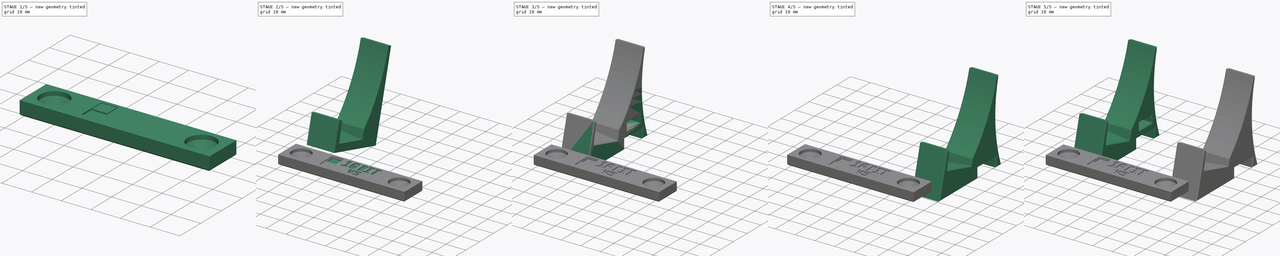
[diagram: build sequence overview — one tinted view per stage of 5, left to right]
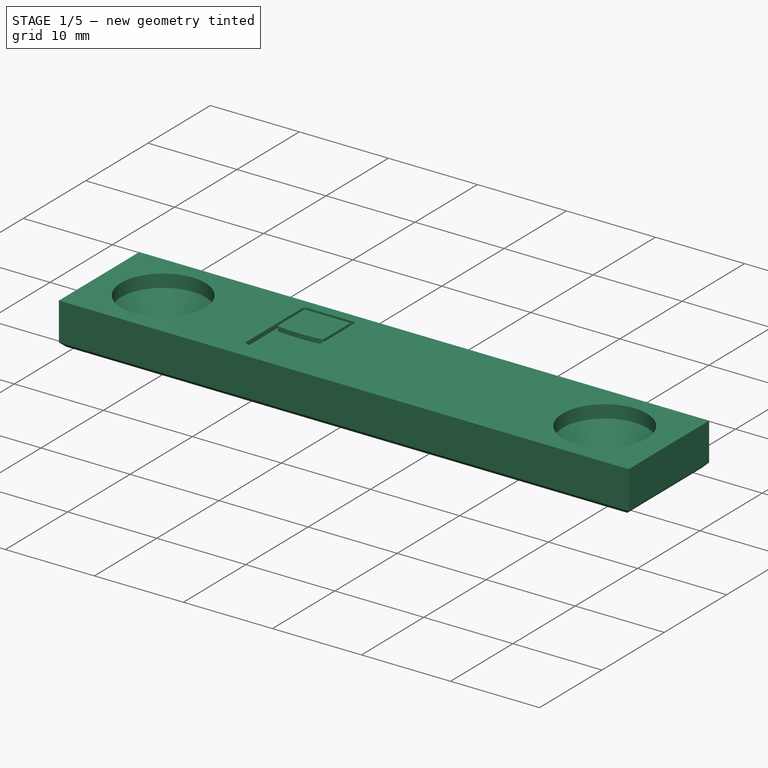
[diagram: stage 1 of 5 — iso view after this stage's code; geometry added in this stage tinted green]
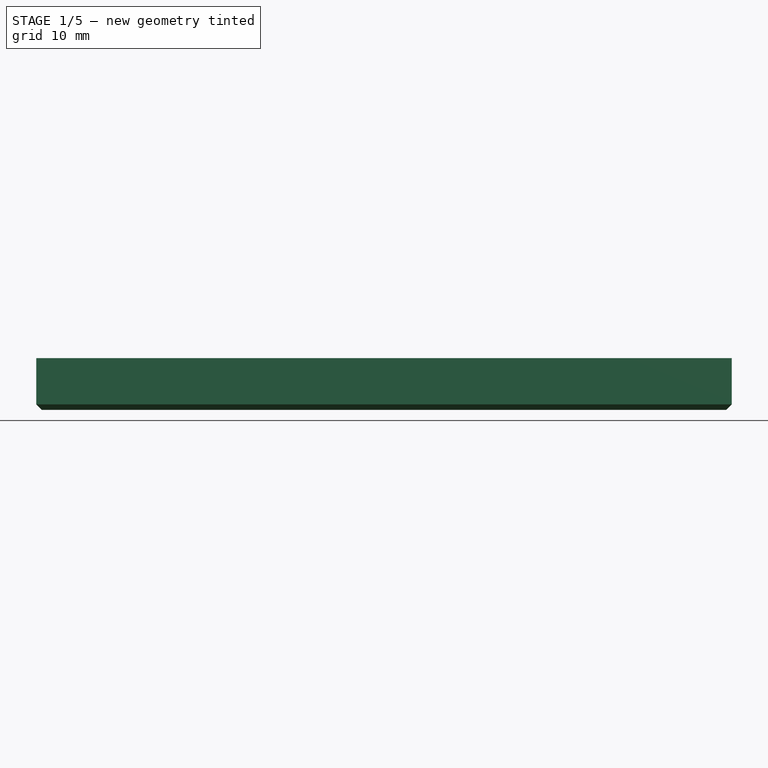
[diagram: stage 1 of 5 — front view after this stage's code; geometry added in this stage tinted green]
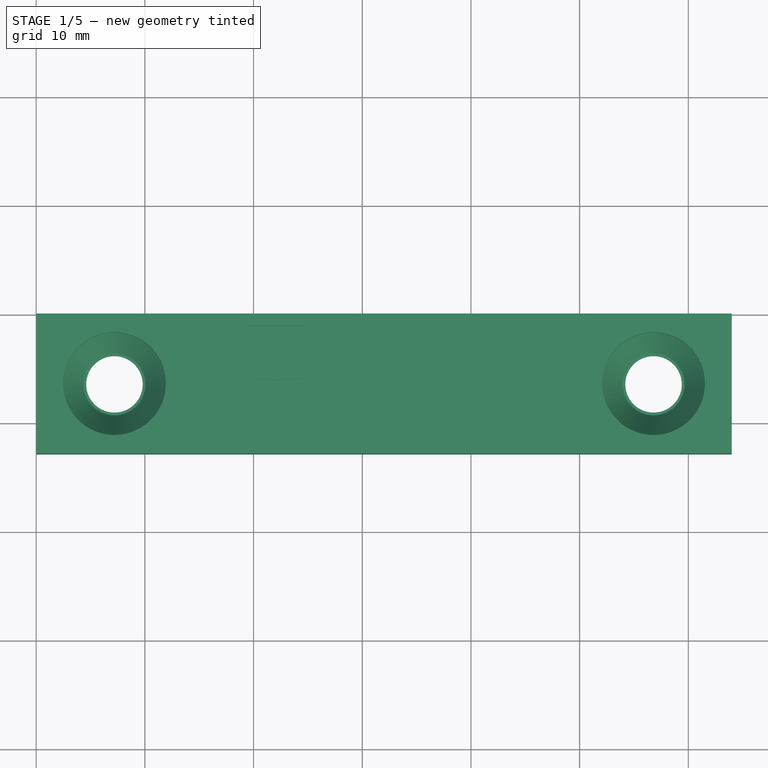
[diagram: stage 1 of 5 — top view after this stage's code; geometry added in this stage tinted green]
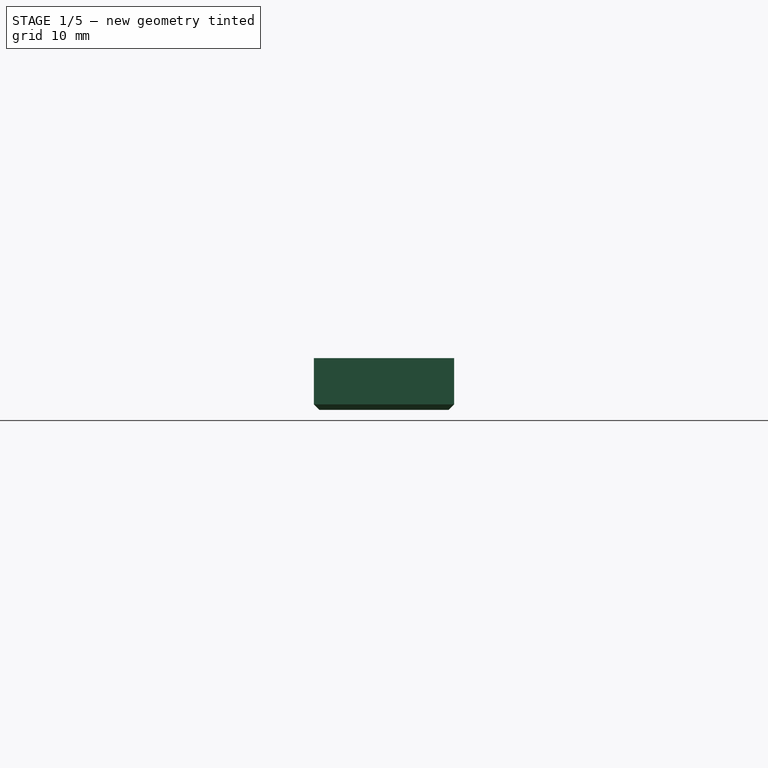
[diagram: stage 1 of 5 — right view after this stage's code; geometry added in this stage tinted green]
FCSTD DOCUMENT  (FreeCAD 1.0R39285 (Git))
Label: GBC Kit
License: Creative Commons Attribution-NonCommercial-ShareAlike
LicenseURL: http://creativecommons.org/licenses/by-nc-sa/4.0/
objects: PartDesign::Pocket×16, Sketcher::SketchObject×13, PartDesign::Body×5, PartDesign::Pad×4, Part::Part2DObjectPython×4, PartDesign::FeatureBase×3, PartDesign::Chamfer×3, PartDesign::Plane×2, Part::Mirroring×1, PartDesign::Groove×1, PartDesign::Mirrored×1
note: 118 computed .brp shape members not serialized (recipe doc carries the construction recipe); baked Part::Feature solids carry a one-line shape summary decoded from their .brp

FEATURE [Sketcher::SketchObject] Sketch009
  ArcFitTolerance = 0
  AttachmentSupport = -> [XY_Plane004]
  FullyConstrained = true
  MakeInternals = false
  MapMode = 5
  sketch-geometry (10):
    g0: LineSegment StartX=10 StartY=-9.95 StartZ=0 EndX=74 EndY=-9.95 EndZ=0
    g1: LineSegment StartX=74 StartY=-9.95 StartZ=0 EndX=74 EndY=-22.85 EndZ=0
    g2: LineSegment StartX=74 StartY=-22.85 StartZ=0 EndX=10 EndY=-22.85 EndZ=0
    g3: LineSegment StartX=10 StartY=-22.85 StartZ=0 EndX=10 EndY=-9.95 EndZ=0
    g4: LineSegment [constr] StartX=0 StartY=0 StartZ=0 EndX=10 EndY=0 EndZ=0
    g5: LineSegment [constr] StartX=10 StartY=0 StartZ=0 EndX=10 EndY=-10 EndZ=0
    g6: LineSegment [constr] StartX=10 StartY=-10 StartZ=0 EndX=0 EndY=-10 EndZ=0
    g7: LineSegment [constr] StartX=0 StartY=-10 StartZ=0 EndX=0 EndY=0 EndZ=0
    g8: LineSegment [constr] StartX=10 StartY=-10 StartZ=0 EndX=10 EndY=-22.8 EndZ=0
    g9: GeomPoint [constr] X=10 Y=-16.4 Z=0
  constraints (26):
    c: Coincident(g0,g1)
    c: Coincident(g1,g2)
    c: Coincident(g2,g3)
    c: Coincident(g3,g0)
    c: Horizontal(g0)
    c: Horizontal(g2)
    c: Vertical(g1)
    c: Vertical(g3)
    c: DistanceX(g0,g0) = 64
    c: DistanceY(g1,g1) = 12.9
    c: Coincident(g4,g5)
    c: Coincident(g5,g6)
    c: Coincident(g6,g7)
    c: Coincident(g7,g4)
    c: Horizontal(g4)
    c: Horizontal(g6)
    c: Vertical(g5)
    c: Vertical(g7)
    c: Coincident(g4,g-1)
    c: DistanceY(g7,g7) = 10
    c: Equal(g7,g4)
    c: Coincident(g8,g5)
    c: Vertical(g8)
    c: DistanceY(g8,g8) = 12.8
    c: Symmetric(g3,g3,g9)
    c: Symmetric(g5,g8,g9)
FEATURE [PartDesign::Pad] Pad003
  Direction = (0,0,1)
  Length = 4.75
  Length2 = 10
  Profile = -> Sketch009
  ReferenceAxis = -> Sketch009 [N_Axis]
  Suppressed = false
  Type = 0
FEATURE [PartDesign::Chamfer] Chamfer002
  Angle = 45
  Base = -> Pad003 [Face5]
  BaseFeature = -> Pad003
  ChamferType = 0
  FlipDirection = false
  Size = 0.5
  Size2 = 1
  SupportTransform = false
  Suppressed = false
  UseAllEdges = false
FEATURE [Sketcher::SketchObject] Sketch011
  ArcFitTolerance = 0
  AttachmentSupport = -> [Chamfer002]
  ExternalGeometry = -> [Chamfer002]
  FullyConstrained = true
  MakeInternals = false
  MapMode = 5
  Placement = pos=(0,0,4.75) rot=(0,0,1;0rad)
  sketch-geometry (6):
    g0: Circle CenterX=17.2 CenterY=-16.4 CenterZ=0 NormalX=0 NormalY=0 NormalZ=1 AngleXU=0 Radius=2.6
    g1: Circle CenterX=66.8 CenterY=-16.4 CenterZ=0 NormalX=0 NormalY=0 NormalZ=1 AngleXU=0 Radius=2.6
    g2: LineSegment [constr] StartX=74 StartY=-16.4 StartZ=0 EndX=69.4 EndY=-16.4 EndZ=0
    g3: LineSegment [constr] StartX=10 StartY=-16.4 StartZ=0 EndX=14.6 EndY=-16.4 EndZ=0
    g4: LineSegment [constr] StartX=14.6 StartY=-16.4 StartZ=0 EndX=17.2 EndY=-16.4 EndZ=0
    g5: LineSegment [constr] StartX=69.4 StartY=-16.4 StartZ=0 EndX=66.8 EndY=-16.4 EndZ=0
  constraints (16):
    c: Horizontal(g2)
    c: PointOnObject(g3,g0)
    c: Horizontal(g3)
    c: Coincident(g4,g3)
    c: Coincident(g4,g0)
    c: Coincident(g5,g2)
    c: Coincident(g5,g1)
    c: Horizontal(g5)
    c: PointOnObject(g2,g1)
    c: Horizontal(g4)
    c: DistanceX(g3,g3) = 4.6
    c: Diameter(g0) = 5.2
    c: Symmetric(g-3,g-3,g2)
    c: Symmetric(g-4,g-4,g3)
    c: Equal(g3,g2)
    c: Equal(g1,g0)
FEATURE [PartDesign::Pocket] Pocket011
  BaseFeature = -> Chamfer002
  Direction = (0,0,-1)
  Length = 5
  Length2 = 5
  Profile = -> Sketch011
  ReferenceAxis = -> Sketch011 [N_Axis]
  Suppressed = false
  Type = 0
FEATURE [PartDesign::Body] Body003  label="GBC Kit Right"
  AllowCompound = false
  BaseFeature = -> Part__Mirroring
  Group = -> [Clone002,Sketch007,Pocket006,Pocket007,ShapeString001,Pocket008,ShapeString004,Pocket017]
  Origin = -> Origin003
  Tip = -> Pocket017
FEATURE [PartDesign::Plane] DatumPlane
  AttachmentSupport = -> [Pocket011]
  Length = 60.0001
  MapMode = 45
  Placement = pos=(17.2,-16.4,2.375) rot=(0.577351,0.57735,0.57735;2.09439rad)
  ResizeMode = 0
  Width = 60
FEATURE [Sketcher::SketchObject] Sketch016
  ArcFitTolerance = 1e-06
  AttachmentSupport = -> [DatumPlane]
  ExternalGeometry = -> [Pocket011]
  FullyConstrained = true
  MakeInternals = false
  MapMode = 5
  Placement = pos=(17.2,-16.4,2.375) rot=(0.577351,0.57735,0.57735;2.09439rad)
  sketch-geometry (10):
    g0: LineSegment [constr] StartX=9.6e-15 StartY=-2.375 StartZ=0 EndX=9.8e-15 EndY=-1.575 EndZ=0
    g1: LineSegment StartX=9.8e-15 StartY=-1.575 StartZ=0 EndX=2.85 EndY=-1.575 EndZ=0
    g2: LineSegment StartX=2.85 StartY=-1.575 StartZ=0 EndX=4.725 EndY=0.925 EndZ=0
    g3: LineSegment StartX=4.725 StartY=0.925 StartZ=0 EndX=4.725 EndY=2.375 EndZ=0
    g4: LineSegment StartX=4.725 StartY=2.375 StartZ=0 EndX=9.8e-15 EndY=2.375 EndZ=0
    g5: LineSegment StartX=9.8e-15 StartY=2.375 StartZ=0 EndX=9.8e-15 EndY=-1.575 EndZ=0
    g6: LineSegment [constr] StartX=2.85 StartY=-1.575 StartZ=0 EndX=4.725 EndY=-1.575 EndZ=0
    g7: LineSegment [constr] StartX=4.725 StartY=-1.575 StartZ=0 EndX=4.725 EndY=0.925 EndZ=0
    g8: LineSegment [constr] StartX=4.725 StartY=0.925 StartZ=0 EndX=2.85 EndY=0.925 EndZ=0
    g9: LineSegment [constr] StartX=2.85 StartY=0.925 StartZ=0 EndX=2.85 EndY=-1.575 EndZ=0
  constraints (26):
    c: Distance(g0) = 0.8
    c: Symmetric(g-4,g-4,g0)
    c: Coincident(g0,g1)
    c: Horizontal(g1)
    c: Coincident(g1,g2)
    c: Coincident(g2,g3)
    c: PointOnObject(g3,g-3)
    c: Vertical(g3)
    c: Coincident(g3,g4)
    c: Symmetric(g-3,g-3,g4)
    c: Coincident(g4,g5)
    c: Distance(g1,g1) = 2.85
    c: Distance(g4,g4) = 4.725
    c: Coincident(g5,g0)
    c: Coincident(g6,g7)
    c: Coincident(g7,g8)
    c: Coincident(g8,g9)
    c: Coincident(g9,g6)
    c: Horizontal(g6)
    c: Horizontal(g8)
    c: Vertical(g7)
    c: Vertical(g9)
    c: Coincident(g6,g1)
    c: Coincident(g7,g2)
    c: DistanceY(g7,g7) = 2.5
    c: Vertical(g5)
FEATURE [PartDesign::Groove] Groove
  Angle = 360
  Angle2 = 60
  Axis = (0,-2e-16,1)
  Base = (17.2,-16.4,2.375)
  BaseFeature = -> Pocket011
  Profile = -> Sketch016
  ReferenceAxis = -> Sketch016 [V_Axis]
  Refine = true
  Suppressed = false
  Type = 0
FEATURE [PartDesign::Plane] DatumPlane001
  AttachmentOffset = pos=(0,0,0) rot=(1,0,0;1.5708rad)
  AttachmentSupport = -> [Groove]
  Length = 60
  MapMode = 45
  Placement = pos=(42,-16.4,2.625) rot=(0.57735,0.57735,0.57735;2.0944rad)
  ResizeMode = 0
  Width = 60
FEATURE [PartDesign::Mirrored] Mirrored
  BaseFeature = -> Groove
  MirrorPlane = -> DatumPlane001
  Originals = -> [Groove]
  Refine = true
  Suppressed = false
  TransformMode = 0
FEATURE [PartDesign::Pocket] Pocket018
  BaseFeature = -> Mirrored
  Direction = (0,0,-1)
  Length = 0
  Length2 = 5
  Offset = 0.5
  Profile = -> Sketch014
  ReferenceAxis = -> Sketch014 [N_Axis]
  Refine = true
  Suppressed = false
  Type = 3
  UpToFace = -> Pocket011 [Face4]
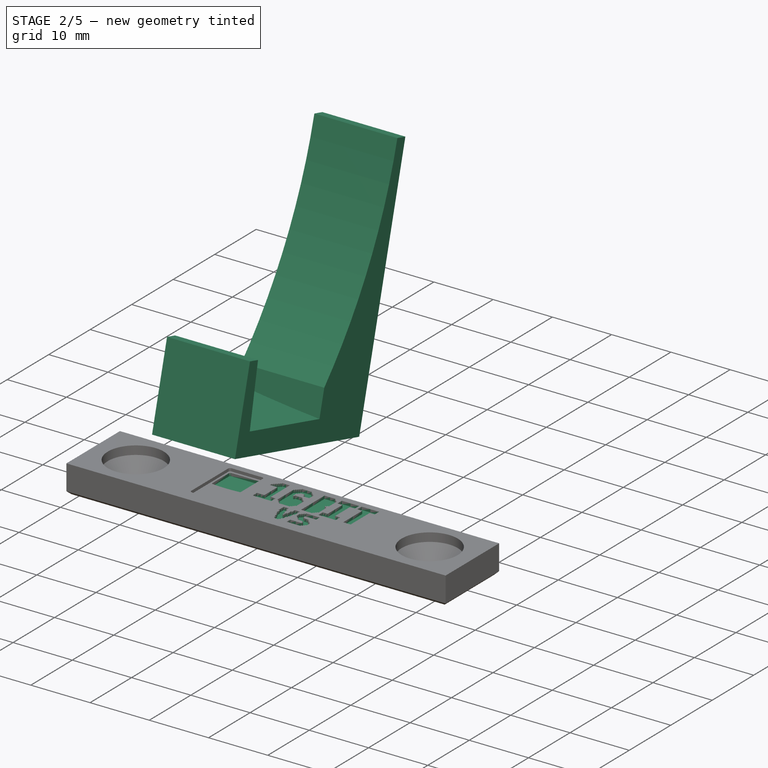
[diagram: stage 2 of 5 — iso view after this stage's code; geometry added in this stage tinted green]
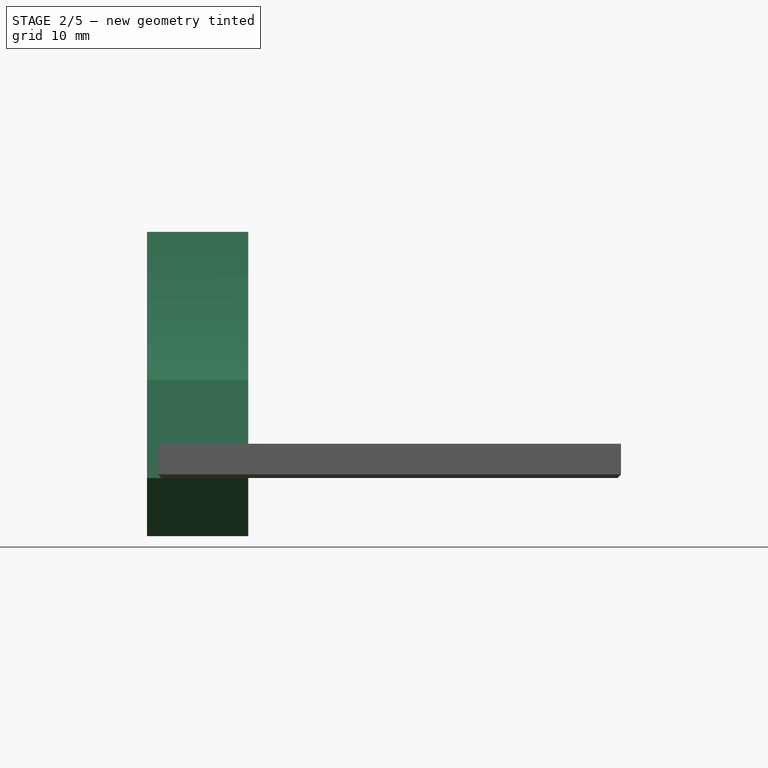
[diagram: stage 2 of 5 — front view after this stage's code; geometry added in this stage tinted green]
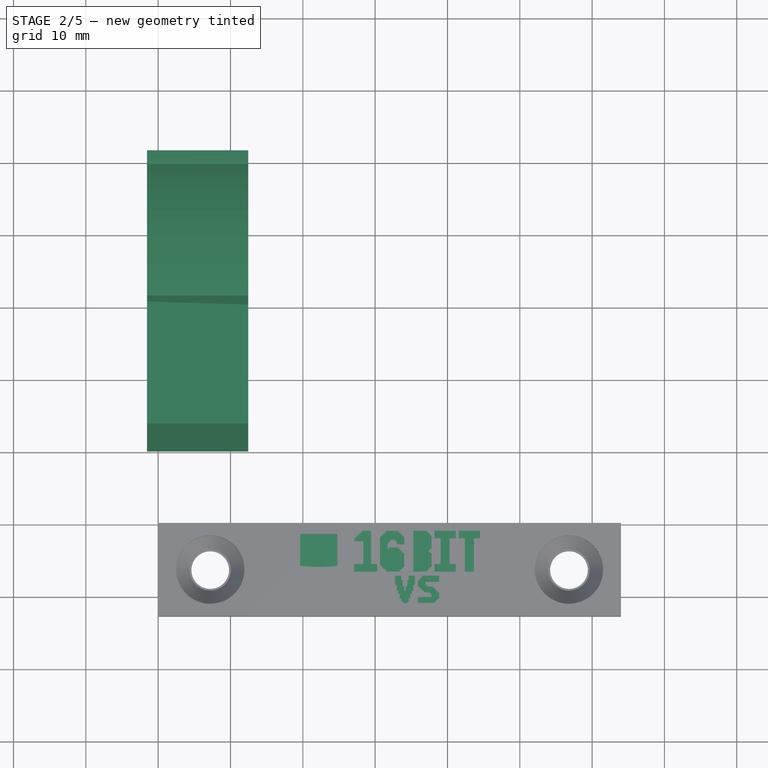
[diagram: stage 2 of 5 — top view after this stage's code; geometry added in this stage tinted green]
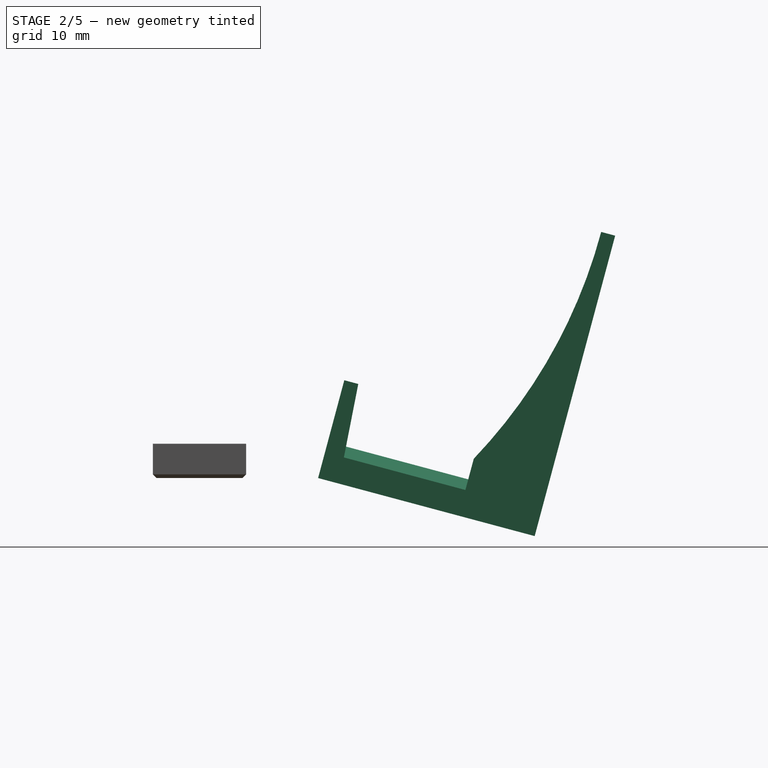
[diagram: stage 2 of 5 — right view after this stage's code; geometry added in this stage tinted green]
FEATURE [Sketcher::SketchObject] Sketch
  ArcFitTolerance = 0
  AttachmentSupport = -> [YZ_Plane]
  FullyConstrained = true
  MakeInternals = false
  MapMode = 5
  Placement = pos=(0,0,0) rot=(0.57735,0.57735,0.57735;2.0944rad)
  sketch-geometry (20):
    g0: LineSegment StartX=0 StartY=0 StartZ=0 EndX=0 EndY=14 EndZ=0
    g1: LineSegment StartX=0 StartY=14 StartZ=0 EndX=2 EndY=14 EndZ=0
    g2: LineSegment StartX=2 StartY=14 StartZ=0 EndX=2.75 EndY=3 EndZ=0
    g3: LineSegment StartX=0 StartY=0 StartZ=0 EndX=31 EndY=0 EndZ=0
    g4: LineSegment StartX=31 StartY=0 StartZ=0 EndX=31 EndY=43 EndZ=0
    g5: LineSegment StartX=31 StartY=43 StartZ=0 EndX=29 EndY=43 EndZ=0
    g6: LineSegment [constr] StartX=29 StartY=43 StartZ=0 EndX=29 EndY=3 EndZ=0
    g7: LineSegment [constr] StartX=29 StartY=3 StartZ=0 EndX=2.75 EndY=3 EndZ=0
    g8: GeomPoint [constr] X=29 Y=3 Z=0
    g9: GeomPoint [constr] X=29 Y=3 Z=0
    g10: LineSegment [constr] StartX=29 StartY=3 StartZ=0 EndX=29 EndY=0 EndZ=0
    g11: LineSegment [constr] StartX=2 StartY=14 StartZ=0 EndX=29 EndY=14 EndZ=0
    g12: LineSegment [constr] StartX=2 StartY=14 StartZ=0 EndX=2 EndY=3 EndZ=0
    g13: LineSegment [constr] StartX=2 StartY=3 StartZ=0 EndX=2.75 EndY=3 EndZ=0
    g14: LineSegment StartX=2.75 StartY=3 StartZ=0 EndX=20.1 EndY=3 EndZ=0
    g15: LineSegment StartX=20.1 StartY=3 StartZ=0 EndX=20.1 EndY=8.15 EndZ=0
    g16: ArcOfCircle CenterX=-43.6816 CenterY=43 CenterZ=0 NormalX=0 NormalY=0 NormalZ=1 AngleXU=0 Radius=72.6816 StartAngle=5.78311 EndAngle=6.28319
    g17: GeomPoint [constr] X=29 Y=43 Z=0
    g18: GeomPoint [constr] X=29 Y=43 Z=0
    g19: GeomPoint [constr] X=29 Y=43 Z=0
  constraints (48):
    c: Coincident(g0,g-1)
    c: Vertical(g0)
    c: Coincident(g1,g0)
    c: Horizontal(g1)
    c: Coincident(g2,g1)
    c: Coincident(g3,g0)
    c: PointOnObject(g3,g-1)
    c: Coincident(g4,g3)
    c: Vertical(g4)
    c: Coincident(g5,g4)
    c: Horizontal(g5)
    c: Coincident(g6,g5)
    c: Vertical(g6)
    c: Coincident(g7,g6)
    c: Coincident(g7,g2)
    c: Horizontal(g7)
    c: DistanceX(g1,g1) = 2
    c: Coincident(g8,g6)
    c: Coincident(g9,g6)
    c: Coincident(g10,g6)
    c: PointOnObject(g10,g3)
    c: Vertical(g10)
    c: DistanceY(g0,g0) = 14
    c: Coincident(g11,g1)
    c: PointOnObject(g11,g6)
    c: Horizontal(g11)
    c: DistanceX(g11,g11) = 27
    c: DistanceY(g6,g6) = 40
    c: Coincident(g12,g1)
    c: Vertical(g12)
    c: Coincident(g13,g12)
    c: Coincident(g13,g2)
    c: Horizontal(g13)
    c: DistanceX(g13,g13) = 0.75
    c: Coincident(g14,g2)
    c: PointOnObject(g14,g7)
    c: Coincident(g15,g14)
    c: Vertical(g15)
    c: DistanceX(g14,g14) = 17.35
    c: DistanceY(g15,g15) = 5.15
    c: Coincident(g16,g15)
    c: Coincident(g17,g16)
    c: Coincident(g18,g5)
    c: Coincident(g19,g16)
    c: Coincident(g5,g16)
    c: Tangent(g6,g16)
    c: Equal(g1,g5)
    c: DistanceY(g10,g10) = 3
FEATURE [PartDesign::Pad] Pad
  Direction = (1,0,0)
  Length = 79.9
  Length2 = 10
  Placement = pos=(0,0,0) rot=(0.57735,0.57735,0.57735;2.0944rad)
  Profile = -> Sketch
  ReferenceAxis = -> Sketch [N_Axis]
  Suppressed = false
  Type = 0
FEATURE [Sketcher::SketchObject] Sketch001
  ArcFitTolerance = 0
  AttachmentSupport = -> [Pad]
  ExternalGeometry = -> [Pad]
  FullyConstrained = true
  MakeInternals = false
  MapMode = 5
  Placement = pos=(4.4e-15,20.1,0) rot=(0.57735,0.57735,-0.57735;2.0944rad)
  sketch-geometry (7):
    g0: LineSegment StartX=-3 StartY=-5.6e-15 StartZ=0 EndX=-6.55 EndY=-4.26e-14 EndZ=0
    g1: LineSegment [constr] StartX=-3 StartY=-5.6e-15 StartZ=0 EndX=-3 EndY=79.9 EndZ=0
    g2: LineSegment StartX=-3 StartY=79.9 StartZ=0 EndX=-6.55 EndY=79.9 EndZ=0
    g3: ArcOfCircle CenterX=-229.564 CenterY=39.95 CenterZ=0 NormalX=0 NormalY=0 NormalZ=1 AngleXU=0 Radius=226.564 StartAngle=6.10593 EndAngle=6.46044
    g4: LineSegment StartX=-3 StartY=-5.6e-15 StartZ=0 EndX=0 EndY=0 EndZ=0
    g5: LineSegment StartX=0 StartY=0 StartZ=0 EndX=0 EndY=79.9 EndZ=0
    g6: LineSegment StartX=0 StartY=79.9 StartZ=0 EndX=-3 EndY=79.9 EndZ=0
  constraints (18):
    c: PointOnObject(g0,g-1)
    c: Coincident(g2,g1)
    c: Horizontal(g2)
    c: Coincident(g0,g-4)
    c: Coincident(g1,g0)
    c: Coincident(g1,g-3)
    c: Equal(g2,g0)
    c: DistanceX(g0,g0) = 3.55
    c: Coincident(g3,g0)
    c: Coincident(g3,g2)
    c: Tangent(g3,g1)
    c: Coincident(g4,g0)
    c: Coincident(g4,g-1)
    c: Coincident(g5,g4)
    c: Vertical(g5)
    c: Coincident(g6,g5)
    c: Coincident(g6,g2)
    c: Horizontal(g6)
FEATURE [PartDesign::Pad] Pad001
  BaseFeature = -> Pad
  Direction = (0,-1,0)
  Length = 10
  Length2 = 10
  Placement = pos=(0,0,0) rot=(0.57735,0.57735,0.57735;2.0944rad)
  Profile = -> Sketch001
  ReferenceAxis = -> Sketch001 [N_Axis]
  Suppressed = false
  Type = 3
  UpToFace = -> Pad [Face1]
FEATURE [Sketcher::SketchObject] Sketch002
  ArcFitTolerance = 0
  AttachmentSupport = -> [Pad001]
  ExternalGeometry = -> [Pad001]
  FullyConstrained = true
  MakeInternals = false
  MapMode = 5
  Placement = pos=(0,0,0) rot=(0.57735,0.57735,-0.57735;2.0944rad)
  sketch-geometry (10):
    g0: GeomPoint [constr] X=-8.9e-15 Y=39.95 Z=0
    g1: LineSegment StartX=-1.77e-14 StartY=79.9 StartZ=0 EndX=-43 EndY=79.9 EndZ=0
    g2: LineSegment StartX=-43 StartY=79.9 StartZ=0 EndX=-43 EndY=22.45 EndZ=0
    g3: LineSegment StartX=-43 StartY=22.45 StartZ=0 EndX=-1.42e-14 EndY=22.45 EndZ=0
    g4: LineSegment StartX=-1.77e-14 StartY=22.45 StartZ=0 EndX=-1.77e-14 EndY=79.9 EndZ=0
    g5: LineSegment StartX=0 StartY=0 StartZ=0 EndX=-43 EndY=0 EndZ=0
    g6: LineSegment StartX=-43 StartY=0 StartZ=0 EndX=-43 EndY=8.45 EndZ=0
    g7: LineSegment StartX=-43 StartY=8.45 StartZ=0 EndX=0 EndY=8.45 EndZ=0
    g8: LineSegment StartX=0 StartY=8.45 StartZ=0 EndX=0 EndY=0 EndZ=0
    g9: LineSegment [constr] StartX=-43 StartY=22.45 StartZ=0 EndX=-43 EndY=8.45 EndZ=0
  constraints (24):
    c: Coincident(g1,g2)
    c: Coincident(g2,g3)
    c: Coincident(g3,g4)
    c: Coincident(g4,g1)
    c: Horizontal(g3)
    c: Vertical(g2)
    c: Vertical(g4)
    c: Coincident(g5,g6)
    c: Coincident(g6,g7)
    c: Coincident(g7,g8)
    c: Coincident(g8,g5)
    c: Horizontal(g5)
    c: Horizontal(g7)
    c: Vertical(g6)
    c: Vertical(g8)
    c: Coincident(g9,g2)
    c: Coincident(g9,g6)
    c: Vertical(g9)
    c: DistanceY(g3,g0) = 17.5
    c: DistanceY(g7,g3) = 14
    c: Coincident(g1,g-3)
    c: Coincident(g1,g-4)
    c: Coincident(g-1,g5)
    c: Symmetric(g1,g5,g0)
FEATURE [PartDesign::Pocket] Pocket
  BaseFeature = -> Pad001
  Direction = (0,1,0)
  Length = 40
  Length2 = 5
  Placement = pos=(0,0,0) rot=(0.57735,0.57735,0.57735;2.0944rad)
  Profile = -> Sketch002
  ReferenceAxis = -> Sketch002 [N_Axis]
  Suppressed = false
  Type = 0
FEATURE [PartDesign::Body] Body  label="GBC Profile"
  AllowCompound = false
  Group = -> [Sketch,Pad,Sketch001,Pad001,Sketch002,Pocket]
  Origin = -> Origin
  Tip = -> Pocket
FEATURE [PartDesign::FeatureBase] Clone
  BaseFeature = -> Body
  Placement = pos=(0,0,0) rot=(-1,0,0;0.261799rad)
  Suppressed = false
FEATURE [PartDesign::Pocket] Pocket019
  BaseFeature = -> Pocket018
  Direction = (0,0,-1)
  Length = 0
  Length2 = 5
  Offset = 0.5
  Profile = -> Sketch015
  ReferenceAxis = -> Sketch015 [N_Axis]
  Refine = true
  Suppressed = false
  Type = 3
  UpToFace = -> Pocket011 [Face4]
FEATURE [PartDesign::Pocket] Pocket020
  BaseFeature = -> Pocket019
  Direction = (0,0,-1)
  Length = 1
  Length2 = 5
  Profile = -> Pocket019 [Face443]
  Refine = true
  Suppressed = false
  Type = 0
FEATURE [PartDesign::Body] Body004  label="Game Boy Connecting Bar"
  AllowCompound = false
  Group = -> [Sketch009,Pad003,Chamfer002,Sketch011,Pocket011,Sketch014,Sketch015,DatumPlane,Sketch016,Groove,DatumPlane001,Mirrored,Pocket018,Pocket019,Pocket020]
  Origin = -> Origin004
  Tip = -> Pocket020
note: 4 file-system paths scrubbed to <path> (originals preserved in the JSON sidecar)
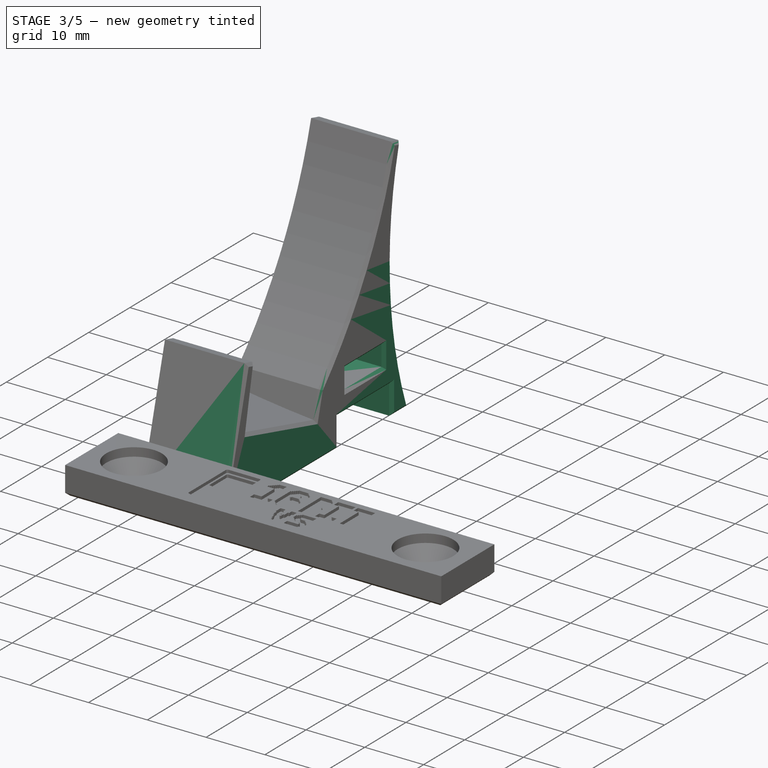
[diagram: stage 3 of 5 — iso view after this stage's code; geometry added in this stage tinted green]
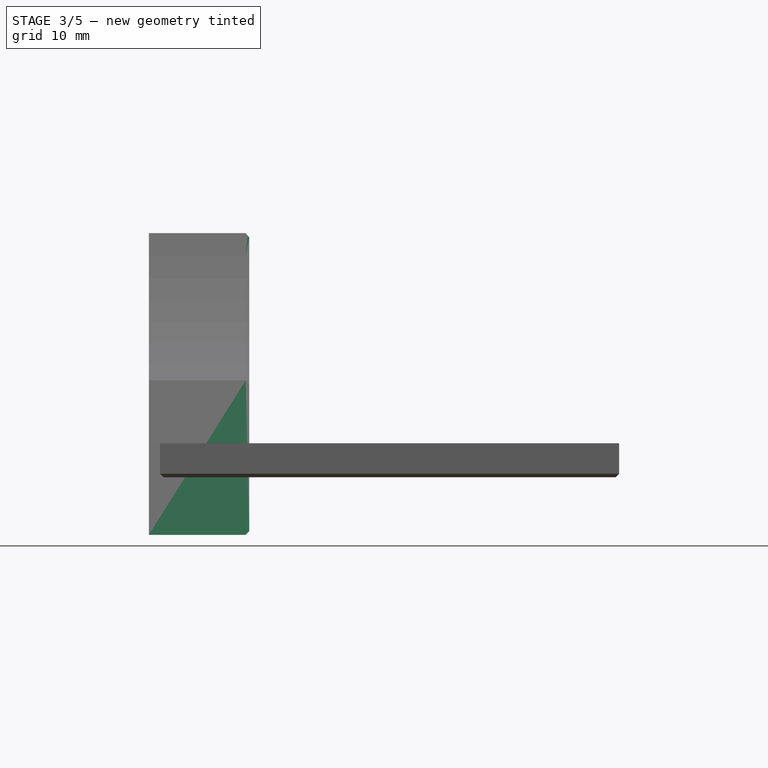
[diagram: stage 3 of 5 — front view after this stage's code; geometry added in this stage tinted green]
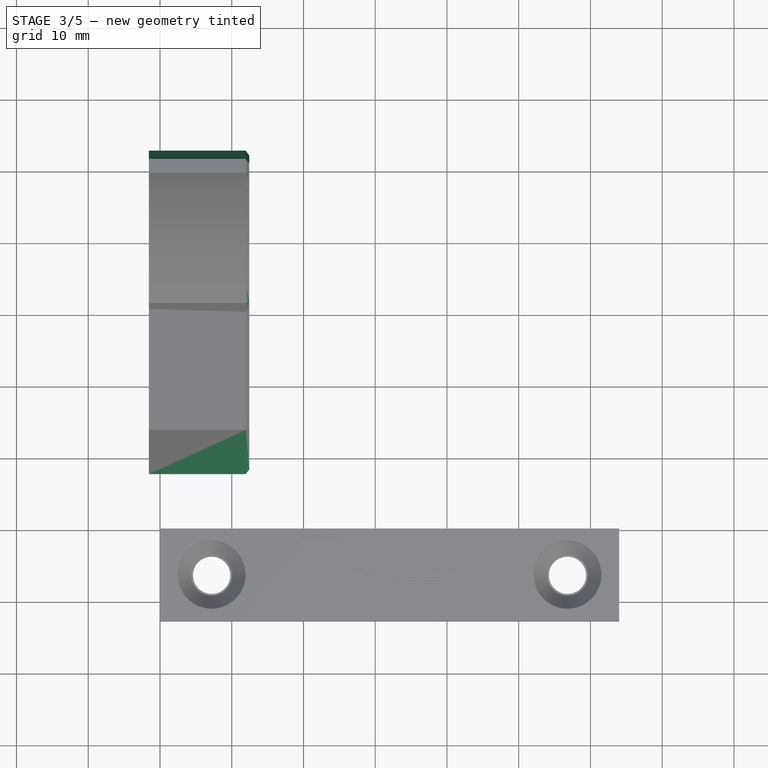
[diagram: stage 3 of 5 — top view after this stage's code; geometry added in this stage tinted green]
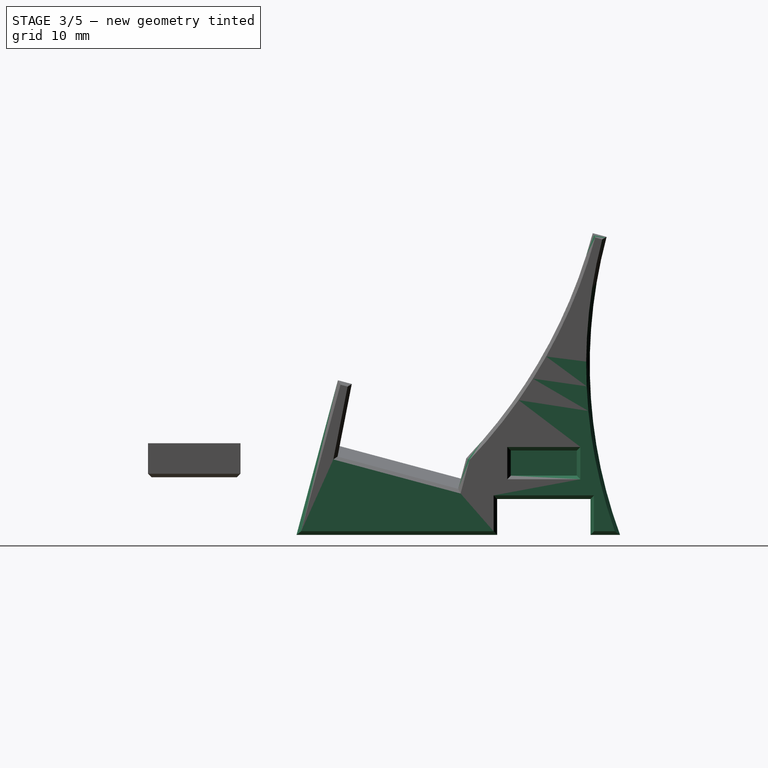
[diagram: stage 3 of 5 — right view after this stage's code; geometry added in this stage tinted green]
FEATURE [Sketcher::SketchObject] Sketch003
  ArcFitTolerance = 0
  AttachmentSupport = -> [Clone]
  ExternalGeometry = -> [Clone]
  FullyConstrained = true
  MakeInternals = false
  MapMode = 5
  Placement = pos=(22.45,1.9e-15,7.2e-15) rot=(0.519988,0.677661,0.519988;1.95044rad)
  sketch-geometry (6):
    g0: LineSegment StartX=31 StartY=-1.4e-15 StartZ=0 EndX=-3.6e-15 EndY=-8.30642 EndZ=0
    g1: LineSegment StartX=-3.6e-15 StartY=-8.30642 StartZ=0 EndX=-3.6e-15 EndY=1.07e-14 EndZ=0
    g2: LineSegment StartX=31 StartY=-1.4e-15 StartZ=0 EndX=43.557 EndY=3.36465 EndZ=0
    g3: ArcOfCircle CenterX=99.8315 CenterY=43 CenterZ=0 NormalX=0 NormalY=0 NormalZ=1 AngleXU=0 Radius=68.8315 StartAngle=3.14159 EndAngle=3.75521
    g4: LineSegment StartX=-3.6e-15 StartY=1.07e-14 StartZ=0 EndX=31 EndY=-1.4e-15 EndZ=0
    g5: LineSegment StartX=31 StartY=-1.4e-15 StartZ=0 EndX=31 EndY=43 EndZ=0
  constraints (14):
    c: Coincident(g1,g0)
    c: Vertical(g1)
    c: Coincident(g2,g0)
    c: Coincident(g3,g2)
    c: Parallel(g0,g2)
    c: Distance(g2) = 13
    c: Coincident(g4,g0)
    c: Coincident(g5,g0)
    c: Coincident(g4,g1)
    c: Coincident(g-4,g0)
    c: Coincident(g1,g-3)
    c: Angle(g4,g0) = 0.261799
    c: Coincident(g-5,g3)
    c: Tangent(g5,g3) = 1.5708
FEATURE [PartDesign::Pad] Pad002
  BaseFeature = -> Clone
  Direction = (1,-1e-16,1e-16)
  Length = 14
  Length2 = 10
  Placement = pos=(0,0,0) rot=(-1,0,0;0.261799rad)
  Profile = -> Sketch003
  ReferenceAxis = -> Sketch003 [N_Axis]
  Refine = true
  Reversed = true
  Suppressed = false
  Type = 0
FEATURE [Sketcher::SketchObject] Sketch004
  ArcFitTolerance = 0
  AttachmentSupport = -> [Pad002]
  ExternalGeometry = -> [Pad002]
  FullyConstrained = true
  MakeInternals = false
  MapMode = 5
  Placement = pos=(22.45,0,0) rot=(0.519988,0.677661,0.519988;1.95044rad)
  sketch-geometry (10):
    g0: LineSegment StartX=25.8129 StartY=10.7746 StartZ=0 EndX=34.6994 EndY=13.1558 EndZ=0
    g1: LineSegment StartX=34.6994 StartY=13.1558 StartZ=0 EndX=35.6053 EndY=9.77501 EndZ=0
    g2: LineSegment StartX=35.6053 StartY=9.77501 StartZ=0 EndX=26.7188 EndY=7.39388 EndZ=0
    g3: LineSegment StartX=26.7188 StartY=7.39388 StartZ=0 EndX=25.8129 EndY=10.7746 EndZ=0
    g4: LineSegment StartX=27.0188 StartY=-1.06677 StartZ=0 EndX=25.7247 EndY=3.76286 EndZ=0
    g5: LineSegment StartX=25.7247 StartY=3.76286 StartZ=0 EndX=38.2817 EndY=7.12751 EndZ=0
    g6: LineSegment StartX=38.2817 StartY=7.12751 StartZ=0 EndX=39.5758 EndY=2.29788 EndZ=0
    g7: LineSegment [constr] StartX=31.162 StartY=8.58445 StartZ=0 EndX=32.0032 EndY=5.44519 EndZ=0
    g8: LineSegment [constr] StartX=38.2817 StartY=7.12751 StartZ=0 EndX=40.6965 EndY=7.77456 EndZ=0
    g9: LineSegment StartX=27.0188 StartY=-1.06677 StartZ=0 EndX=39.5758 EndY=2.29788 EndZ=0
  constraints (29):
    c: Coincident(g1,g0)
    c: Coincident(g2,g1)
    c: Coincident(g3,g2)
    c: Coincident(g3,g0)
    c: PointOnObject(g4,g-3)
    c: Coincident(g5,g4)
    c: Coincident(g6,g5)
    c: PointOnObject(g6,g-3)
    c: Parallel(g-3,g5)
    c: Parallel(g5,g2)
    c: Parallel(g2,g0)
    c: Parallel(g3,g1)
    c: Parallel(g6,g4)
    c: Perpendicular(g6,g-3)
    c: Perpendicular(g1,g2)
    c: Symmetric(g4,g5,g7)
    c: Symmetric(g2,g1,g7)
    c: Parallel(g3,g7)
    c: Distance(g7) = 3.25
    c: Distance(g1) = 3.5
    c: Distance(g4) = 5
    c: Distance(g5) = 13
    c: Distance(g0) = 9.2
    c: Coincident(g8,g5)
    c: PointOnObject(g8,g-4)
    c: Parallel(g-3,g8)
    c: Distance(g8) = 2.5
    c: Coincident(g9,g4)
    c: Coincident(g9,g6)
FEATURE [PartDesign::Pocket] Pocket001
  BaseFeature = -> Pad002
  Direction = (-1,1e-16,-1e-16)
  Length = 12
  Length2 = 5
  Placement = pos=(0,0,0) rot=(-1,0,0;0.261799rad)
  Profile = -> Sketch004
  ReferenceAxis = -> Sketch004 [N_Axis]
  Suppressed = false
  Type = 0
FEATURE [PartDesign::Pocket] Pocket002
  BaseFeature = -> Pocket001
  Direction = (-1,0,0)
  Length = 5
  Length2 = 5
  Placement = pos=(0,0,0) rot=(-1,0,0;0.261799rad)
  Profile = -> Pocket001 [Face19]
  Refine = true
  Suppressed = false
  Type = 0
FEATURE [Sketcher::SketchObject] Sketch005
  ArcFitTolerance = 0
  AttachmentSupport = -> [Pocket002]
  ExternalGeometry = -> [Pocket002]
  FullyConstrained = true
  MakeInternals = false
  MapMode = 5
  Placement = pos=(0,-3.6e-15,-3.02339) rot=(1,0,0;3.14159rad)
  sketch-geometry (2):
    g0: GeomPoint [constr] X=15.45 Y=-32.322 Z=0
    g1: Circle CenterX=15.45 CenterY=-32.322 CenterZ=0 NormalX=0 NormalY=0 NormalZ=1 AngleXU=0 Radius=2.6
  constraints (3):
    c: Coincident(g1,g0)
    c: Diameter(g1) = 5.2
    c: Symmetric(g-3,g-4,g0)
FEATURE [PartDesign::Pocket] Pocket003
  BaseFeature = -> Pocket002
  Direction = (0,1.3e-15,1)
  Length = 12
  Length2 = 5
  Placement = pos=(0,0,0) rot=(-1,0,0;0.261799rad)
  Profile = -> Sketch005
  ReferenceAxis = -> Sketch005 [N_Axis]
  Suppressed = false
  Type = 0
FEATURE [PartDesign::Chamfer] Chamfer
  Angle = 45
  Base = -> Pocket003 [Face4]
  BaseFeature = -> Pocket003
  ChamferType = 0
  FlipDirection = false
  Placement = pos=(0,0,0) rot=(-1,0,0;0.261799rad)
  Size = 0.5
  Size2 = 1
  SupportTransform = false
  Suppressed = false
  UseAllEdges = false
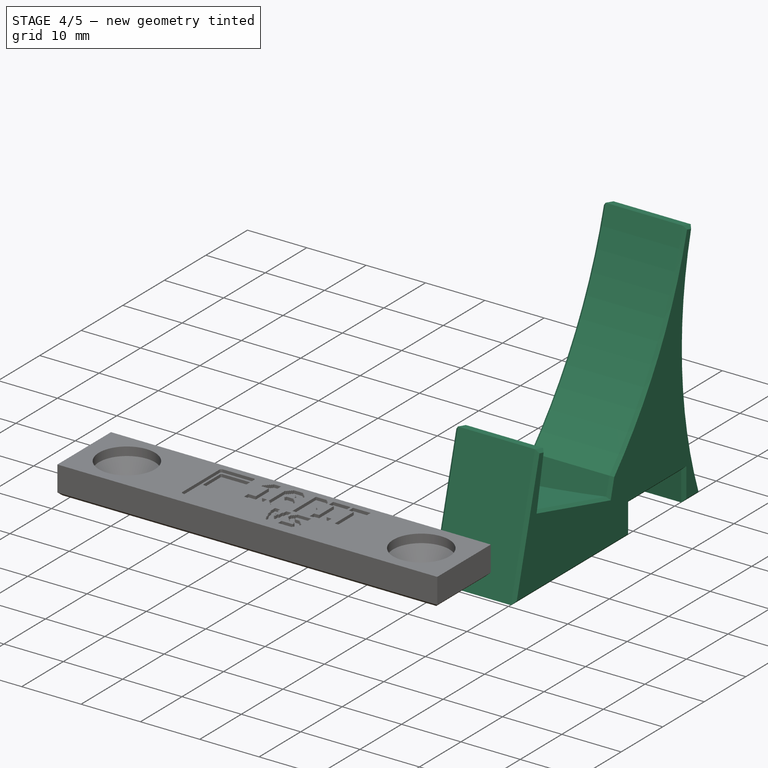
[diagram: stage 4 of 5 — iso view after this stage's code; geometry added in this stage tinted green]
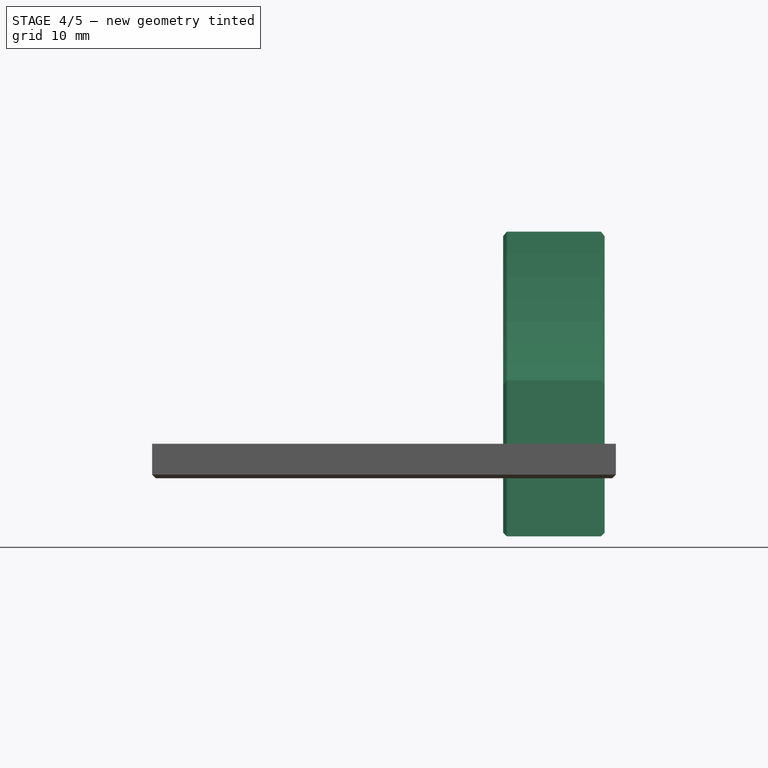
[diagram: stage 4 of 5 — front view after this stage's code; geometry added in this stage tinted green]
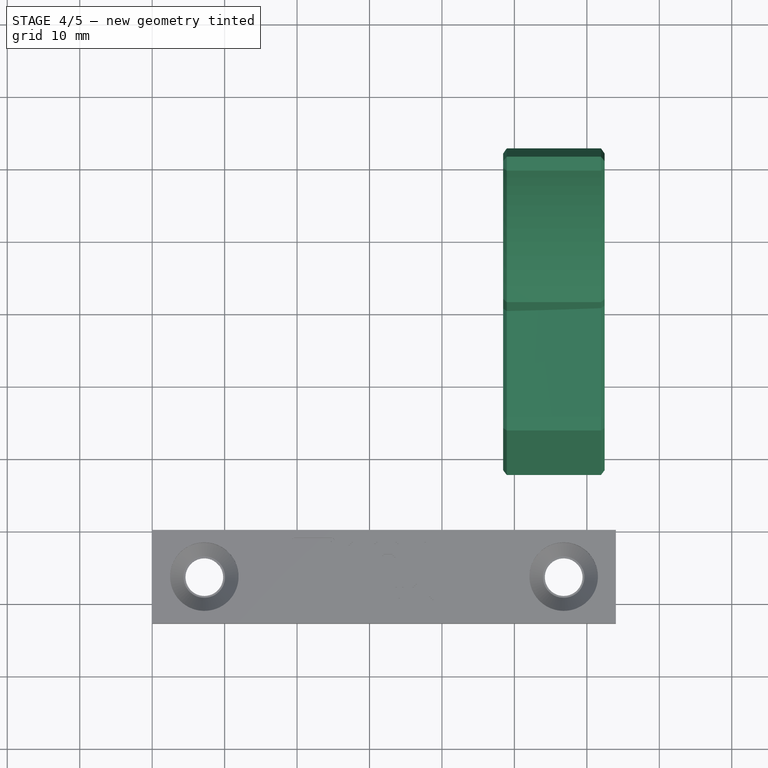
[diagram: stage 4 of 5 — top view after this stage's code; geometry added in this stage tinted green]
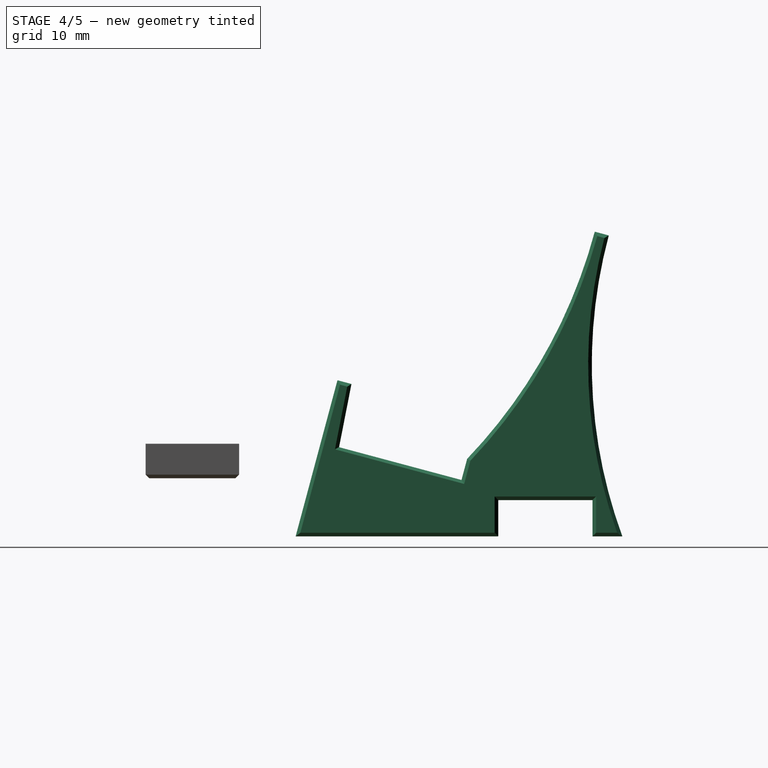
[diagram: stage 4 of 5 — right view after this stage's code; geometry added in this stage tinted green]
FEATURE [PartDesign::Chamfer] Chamfer001
  Angle = 45
  Base = -> Chamfer [Face4]
  BaseFeature = -> Chamfer
  ChamferType = 0
  FlipDirection = false
  Placement = pos=(0,0,0) rot=(-1,0,0;0.261799rad)
  Size = 0.5
  Size2 = 1
  SupportTransform = false
  Suppressed = false
  UseAllEdges = false
FEATURE [PartDesign::FeatureBase] Clone001
  BaseFeature = -> Chamfer001
  Placement = pos=(0,0,0) rot=(-1,0,0;0.261799rad)
  Suppressed = false
FEATURE [PartDesign::Body] Body002  label="GBC Mirror"
  AllowCompound = false
  Group = -> [Clone001]
  Origin = -> Origin002
  Tip = -> Clone001
FEATURE [Part::Mirroring] Part__Mirroring  label="GBC Kit Right (Mirror #1)"
  Base = (9.53674e-07,20.3969,12.9167)
  Normal = (1,0,-1.19209e-07)
  Placement = pos=(80.9,0,0) rot=(0,0,1;0rad)
  Source = -> Body002
FEATURE [PartDesign::FeatureBase] Clone002
  BaseFeature = -> Part__Mirroring
  Placement = pos=(80.9,0,0) rot=(0,0,1;0rad)
  Suppressed = false
FEATURE [PartDesign::Pocket] Pocket006
  BaseFeature = -> Clone002
  Direction = (0,0,-1)
  Length = 0
  Length2 = 5
  Offset = 0.5
  Placement = pos=(80.9,0,0) rot=(0,0,1;0rad)
  Profile = -> Sketch007
  ReferenceAxis = -> Sketch007 [N_Axis]
  Reversed = true
  Suppressed = false
  Type = 3
  UpToFace = -> Clone002 [Face45]
FEATURE [PartDesign::Pocket] Pocket007
  BaseFeature = -> Pocket006
  Direction = (2.38419e-07,8e-16,1)
  Length = 1
  Length2 = 5
  Placement = pos=(80.9,0,0) rot=(0,0,1;0rad)
  Profile = -> Pocket006 [Face71]
  Suppressed = false
  Type = 0
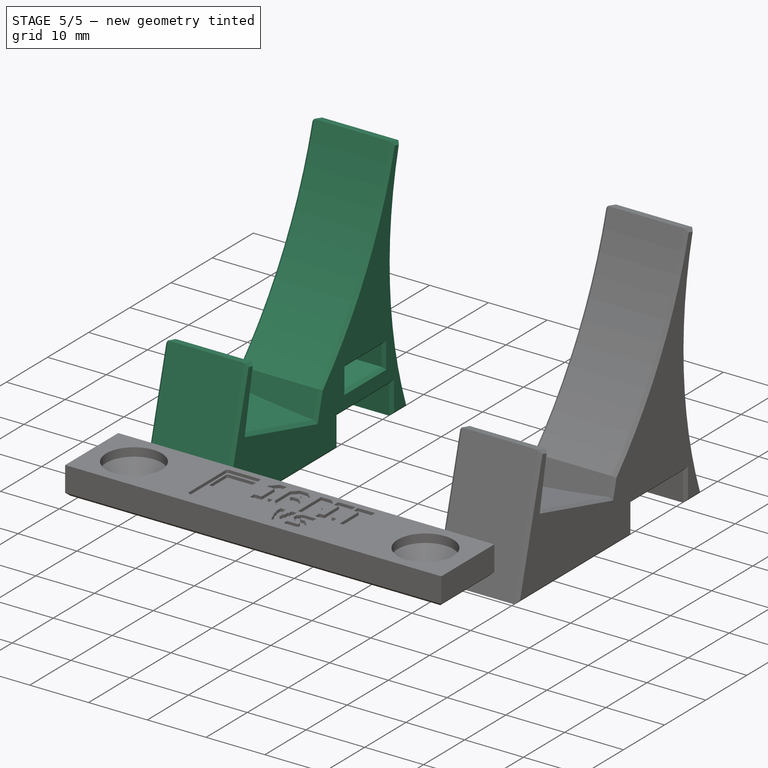
[diagram: stage 5 of 5 — iso view after this stage's code; geometry added in this stage tinted green]
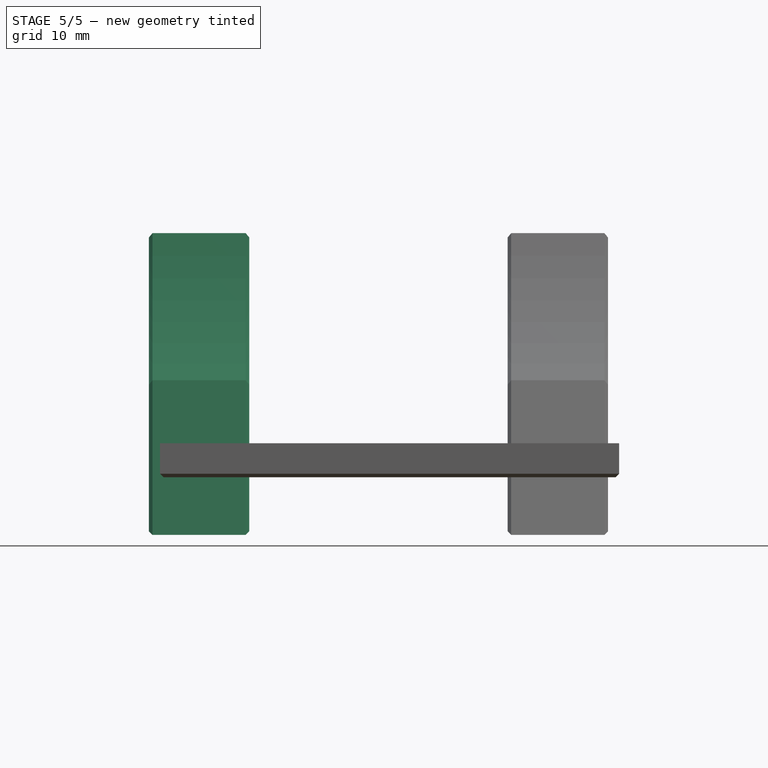
[diagram: stage 5 of 5 — front view after this stage's code; geometry added in this stage tinted green]
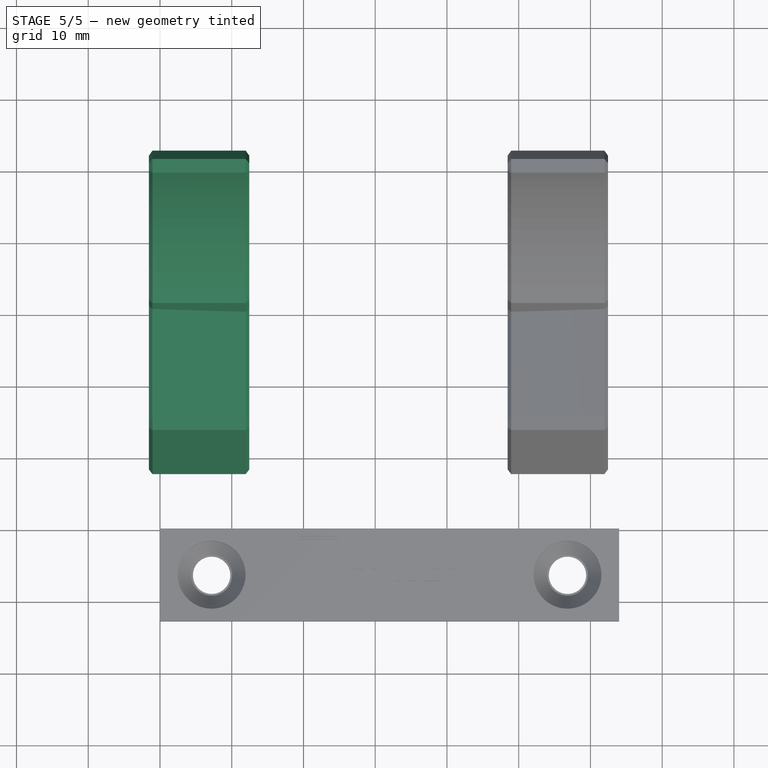
[diagram: stage 5 of 5 — top view after this stage's code; geometry added in this stage tinted green]
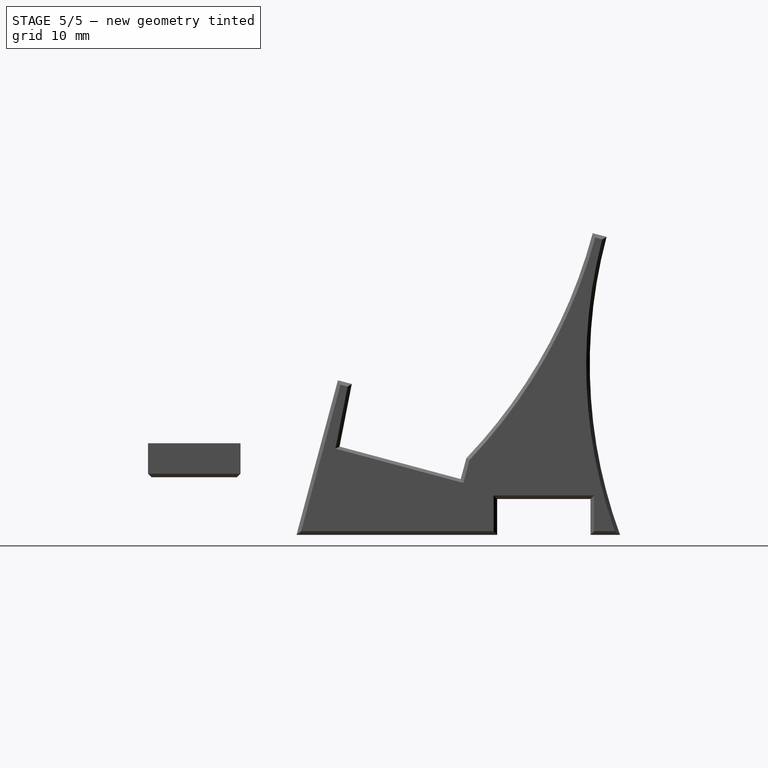
[diagram: stage 5 of 5 — right view after this stage's code; geometry added in this stage tinted green]
FEATURE [Sketcher::SketchObject] Sketch007  label="GBC Icon001"
  ArcFitTolerance = 0
  FullyConstrained = false
  MakeInternals = false
  Placement = pos=(69.39,12.85,-10.02) rot=(0,0,1;0rad)
  sketch-geometry (16):
    g0: BSplineCurve PolesCount=2 KnotsCount=2 Degree=1 IsPeriodic=0
    g1: BSplineCurve PolesCount=4 KnotsCount=2 Degree=3 IsPeriodic=0
    g2: BSplineCurve PolesCount=2 KnotsCount=2 Degree=1 IsPeriodic=0
    g3: BSplineCurve PolesCount=4 KnotsCount=2 Degree=3 IsPeriodic=0
    g4: BSplineCurve PolesCount=4 KnotsCount=2 Degree=3 IsPeriodic=0
    g5: BSplineCurve PolesCount=4 KnotsCount=2 Degree=3 IsPeriodic=0
    g6: BSplineCurve PolesCount=2 KnotsCount=2 Degree=1 IsPeriodic=0
    g7: BSplineCurve PolesCount=4 KnotsCount=2 Degree=3 IsPeriodic=0
    g8: BSplineCurve PolesCount=2 KnotsCount=2 Degree=1 IsPeriodic=0
    g9: BSplineCurve PolesCount=4 KnotsCount=2 Degree=3 IsPeriodic=0
    g10: BSplineCurve PolesCount=4 KnotsCount=2 Degree=3 IsPeriodic=0
    g11: BSplineCurve PolesCount=4 KnotsCount=2 Degree=3 IsPeriodic=0
    g12: BSplineCurve PolesCount=2 KnotsCount=2 Degree=1 IsPeriodic=0
    g13: BSplineCurve PolesCount=4 KnotsCount=2 Degree=3 IsPeriodic=0
    g14: BSplineCurve PolesCount=2 KnotsCount=2 Degree=1 IsPeriodic=0
    g15: BSplineCurve PolesCount=4 KnotsCount=2 Degree=3 IsPeriodic=0
  constraints (16):
    c: Coincident(g0,g1)
    c: Coincident(g1,g2)
    c: Coincident(g2,g3)
    c: Coincident(g3,g4)
    c: Coincident(g4,g5)
    c: Coincident(g5,g6)
    c: Coincident(g6,g7)
    c: Coincident(g8,g9)
    c: Coincident(g9,g10)
    c: Coincident(g10,g11)
    c: Coincident(g11,g12)
    c: Coincident(g12,g13)
    c: Coincident(g13,g14)
    c: Coincident(g14,g15)
    c: Coincident(g15,g8)
    c: Coincident(g7,g0)
FEATURE [Sketcher::SketchObject] Sketch008  label="GBC Icon002"
  ArcFitTolerance = 0
  FullyConstrained = false
  MakeInternals = false
  Placement = pos=(19.39,12.85,-10.02) rot=(0,0,1;0rad)
  sketch-geometry (16):
    g0: BSplineCurve PolesCount=2 KnotsCount=2 Degree=1 IsPeriodic=0
    g1: BSplineCurve PolesCount=4 KnotsCount=2 Degree=3 IsPeriodic=0
    g2: BSplineCurve PolesCount=2 KnotsCount=2 Degree=1 IsPeriodic=0
    g3: BSplineCurve PolesCount=4 KnotsCount=2 Degree=3 IsPeriodic=0
    g4: BSplineCurve PolesCount=4 KnotsCount=2 Degree=3 IsPeriodic=0
    g5: BSplineCurve PolesCount=4 KnotsCount=2 Degree=3 IsPeriodic=0
    g6: BSplineCurve PolesCount=2 KnotsCount=2 Degree=1 IsPeriodic=0
    g7: BSplineCurve PolesCount=4 KnotsCount=2 Degree=3 IsPeriodic=0
    g8: BSplineCurve PolesCount=2 KnotsCount=2 Degree=1 IsPeriodic=0
    g9: BSplineCurve PolesCount=4 KnotsCount=2 Degree=3 IsPeriodic=0
    g10: BSplineCurve PolesCount=4 KnotsCount=2 Degree=3 IsPeriodic=0
    g11: BSplineCurve PolesCount=4 KnotsCount=2 Degree=3 IsPeriodic=0
    g12: BSplineCurve PolesCount=2 KnotsCount=2 Degree=1 IsPeriodic=0
    g13: BSplineCurve PolesCount=4 KnotsCount=2 Degree=3 IsPeriodic=0
    g14: BSplineCurve PolesCount=2 KnotsCount=2 Degree=1 IsPeriodic=0
    g15: BSplineCurve PolesCount=4 KnotsCount=2 Degree=3 IsPeriodic=0
  constraints (16):
    c: Coincident(g0,g1)
    c: Coincident(g1,g2)
    c: Coincident(g2,g3)
    c: Coincident(g3,g4)
    c: Coincident(g4,g5)
    c: Coincident(g5,g6)
    c: Coincident(g6,g7)
    c: Coincident(g8,g9)
    c: Coincident(g9,g10)
    c: Coincident(g10,g11)
    c: Coincident(g11,g12)
    c: Coincident(g12,g13)
    c: Coincident(g13,g14)
    c: Coincident(g14,g15)
    c: Coincident(g15,g8)
    c: Coincident(g7,g0)
FEATURE [PartDesign::Pocket] Pocket004
  BaseFeature = -> Chamfer001
  Direction = (0,0,-1)
  Length = 0
  Length2 = 5
  Offset = 0.5
  Placement = pos=(0,0,0) rot=(-1,0,0;0.261799rad)
  Profile = -> Sketch008
  ReferenceAxis = -> Sketch008 [N_Axis]
  Reversed = true
  Suppressed = false
  Type = 3
  UpToFace = -> Chamfer001 [Face45]
FEATURE [PartDesign::Pocket] Pocket005
  BaseFeature = -> Pocket004
  Direction = (0,8e-16,1)
  Length = 1
  Length2 = 5
  Placement = pos=(0,0,0) rot=(-1,0,0;0.261799rad)
  Profile = -> Pocket004 [Face71]
  Suppressed = false
  Type = 0
FEATURE [Part::Part2DObjectPython] ShapeString  # Draft 2D object (typed FeaturePython)
  FontFile = <path> Bit Git Repro/16BitVirtualStudiosDesigns/Font/OpenSans-Regular.ttf
  Fuse = false
  Justification = 6
  JustificationReference = 0
  KeepLeftMargin = true
  MakeFace = true
  ObliqueAngle = 0
  Placement = pos=(11.96,9.01,-10.02) rot=(1,0,0;3.14159rad)
  ScaleToSize = false
  Size = 10
  String = L
  Tracking = 0
FEATURE [Part::Part2DObjectPython] ShapeString001  # Draft 2D object (typed FeaturePython)
  FontFile = <path> Bit Git Repro/16BitVirtualStudiosDesigns/Font/OpenSans-Regular.ttf
  Fuse = false
  Justification = 6
  JustificationReference = 0
  KeepLeftMargin = true
  MakeFace = true
  ObliqueAngle = 0
  Placement = pos=(61.47,9.01,-10.02) rot=(1,0,0;3.14159rad)
  ScaleToSize = false
  Size = 10
  String = R
  Tracking = 0
FEATURE [PartDesign::Pocket] Pocket008
  BaseFeature = -> Pocket007
  Direction = (0,1e-16,1)
  Length = 0
  Length2 = 5
  Offset = 0.5
  Placement = pos=(80.9,0,0) rot=(0,0,1;0rad)
  Profile = -> ShapeString001
  ReferenceAxis = -> ShapeString001 [N_Axis]
  Suppressed = false
  Type = 3
  UpToFace = -> Pocket007 [Face45]
FEATURE [PartDesign::Pocket] Pocket009
  BaseFeature = -> Pocket005
  Direction = (0,1e-16,1)
  Length = 0
  Length2 = 5
  Offset = 0.5
  Placement = pos=(0,0,0) rot=(-1,0,0;0.261799rad)
  Profile = -> ShapeString
  ReferenceAxis = -> ShapeString [N_Axis]
  Suppressed = false
  Type = 3
  UpToFace = -> Pocket005 [Face45]
FEATURE [Sketcher::SketchObject] Sketch014
  ArcFitTolerance = 0
  FullyConstrained = true
  MakeInternals = false
  MapMode = 5
  Placement = pos=(0,0,12.75) rot=(0,0,1;0rad)
  sketch-geometry (16):
    g0: ArcOfCircle CenterX=29.6227 CenterY=-20.3049 CenterZ=0 NormalX=0 NormalY=0 NormalZ=1 AngleXU=0 Radius=0.336572 StartAngle=3.14159 EndAngle=4.43334
    g1: ArcOfCircle CenterX=32.2032 CenterY=-11.2989 CenterZ=0 NormalX=0 NormalY=0 NormalZ=1 AngleXU=0 Radius=9.70492 StartAngle=4.43334 EndAngle=4.99144
    g2: ArcOfCircle CenterX=34.7836 CenterY=-20.3049 CenterZ=0 NormalX=0 NormalY=0 NormalZ=1 AngleXU=0 Radius=0.336572 StartAngle=4.99144 EndAngle=6.28319
    g3: ArcOfCircle CenterX=29.6228 CenterY=-11.3928 CenterZ=0 NormalX=0 NormalY=0 NormalZ=1 AngleXU=0 Radius=0.336574 StartAngle=1.5708 EndAngle=3.14159
    g4: ArcOfCircle CenterX=34.7836 CenterY=-11.3928 CenterZ=0 NormalX=0 NormalY=0 NormalZ=1 AngleXU=0 Radius=0.336574 StartAngle=6.28319 EndAngle=7.85398
    g5: ArcOfCircle CenterX=34.5586 CenterY=-11.6925 CenterZ=0 NormalX=0 NormalY=0 NormalZ=1 AngleXU=0 Radius=0.225 StartAngle=0.00273865 EndAngle=1.56806
    g6: ArcOfCircle CenterX=29.8478 CenterY=-11.6925 CenterZ=0 NormalX=0 NormalY=0 NormalZ=1 AngleXU=0 Radius=0.225 StartAngle=1.57354 EndAngle=3.13885
    g7: ArcOfCircle CenterX=29.8471 CenterY=-15.6797 CenterZ=0 NormalX=0 NormalY=0 NormalZ=1 AngleXU=0 Radius=0.224383 StartAngle=3.14159 EndAngle=4.60562
    g8: ArcOfCircle CenterX=34.5592 CenterY=-15.6797 CenterZ=0 NormalX=0 NormalY=0 NormalZ=1 AngleXU=0 Radius=0.224383 StartAngle=4.81916 EndAngle=6.28319
    g9: ArcOfCircle CenterX=32.2032 CenterY=6.30258 CenterZ=0 NormalX=0 NormalY=0 NormalZ=1 AngleXU=0 Radius=22.3326 StartAngle=4.60562 EndAngle=4.81916
    g10: LineSegment StartX=29.6228 StartY=-15.6797 StartZ=0 EndX=29.6228 EndY=-11.6919 EndZ=0
    g11: LineSegment StartX=29.8471 StartY=-11.4675 StartZ=0 EndX=34.5592 EndY=-11.4675 EndZ=0
    g12: LineSegment StartX=34.7836 StartY=-11.6919 StartZ=0 EndX=34.7836 EndY=-15.6797 EndZ=0
    g13: LineSegment StartX=29.6228 StartY=-11.0562 StartZ=0 EndX=34.7836 EndY=-11.0562 EndZ=0
    g14: LineSegment StartX=35.1201 StartY=-11.3928 StartZ=0 EndX=35.1201 EndY=-20.3049 EndZ=0
    g15: LineSegment StartX=29.2862 StartY=-20.3049 StartZ=0 EndX=29.2862 EndY=-11.3928 EndZ=0
  constraints (35):
    c: Coincident(g0,g-11)
    c: Coincident(g0,g-11)
    c: Coincident(g1,g0)
    c: Coincident(g1,g-12)
    c: Coincident(g2,g-12)
    c: Coincident(g3,g-3)
    c: Coincident(g3,g-3)
    c: Coincident(g4,g-4)
    c: Coincident(g4,g-4)
    c: Coincident(g5,g-5)
    c: Coincident(g5,g-5)
    c: Coincident(g6,g-6)
    c: Coincident(g6,g-6)
    c: Coincident(g7,g-8)
    c: Coincident(g7,g-8)
    c: Coincident(g8,g-9)
    c: Coincident(g8,g-9)
    c: Coincident(g9,g7)
    c: Coincident(g10,g6)
    c: Diameter(g6) = 0.45
    c: Equal(g6,g5)
    c: Equal(g7,g8)
    c: Tangent(g10,g7) = 1.5708
    c: Coincident(g11,g6)
    c: Coincident(g11,g5)
    c: Coincident(g12,g5)
    c: Coincident(g12,g8)
    c: Tangent(g9,g8) = -1.5708
    c: Coincident(g13,g3)
    c: Coincident(g14,g4)
    c: Tangent(g15,g3) = 1.5708
    c: Tangent(g13,g4) = 1.5708
    c: Tangent(g14,g2) = 1.5708
    c: Tangent(g2,g1) = -1.5708
    c: Tangent(g15,g0) = 1.5708
FEATURE [Sketcher::SketchObject] Sketch015  label="16 Bit VS"
  ArcFitTolerance = 0
  FullyConstrained = false
  MakeInternals = false
  Placement = pos=(37.12,-11.03,10.75) rot=(0,0,1;0rad)
  sketch-geometry (400):
    g0: BSplineCurve PolesCount=2 KnotsCount=2 Degree=1 IsPeriodic=0
    g1: BSplineCurve PolesCount=2 KnotsCount=2 Degree=1 IsPeriodic=0
    g2: BSplineCurve PolesCount=2 KnotsCount=2 Degree=1 IsPeriodic=0
    g3: BSplineCurve PolesCount=2 KnotsCount=2 Degree=1 IsPeriodic=0
    g4: BSplineCurve PolesCount=2 KnotsCount=2 Degree=1 IsPeriodic=0
    g5: BSplineCurve PolesCount=2 KnotsCount=2 Degree=1 IsPeriodic=0
    g6: BSplineCurve PolesCount=2 KnotsCount=2 Degree=1 IsPeriodic=0
    g7: BSplineCurve PolesCount=2 KnotsCount=2 Degree=1 IsPeriodic=0
    g8: BSplineCurve PolesCount=2 KnotsCount=2 Degree=1 IsPeriodic=0
    g9: BSplineCurve PolesCount=2 KnotsCount=2 Degree=1 IsPeriodic=0
    g10: BSplineCurve PolesCount=2 KnotsCount=2 Degree=1 IsPeriodic=0
    g11: BSplineCurve PolesCount=2 KnotsCount=2 Degree=1 IsPeriodic=0
    g12: BSplineCurve PolesCount=2 KnotsCount=2 Degree=1 IsPeriodic=0
    g13: BSplineCurve PolesCount=2 KnotsCount=2 Degree=1 IsPeriodic=0
    g14: BSplineCurve PolesCount=2 KnotsCount=2 Degree=1 IsPeriodic=0
    g15: BSplineCurve PolesCount=2 KnotsCount=2 Degree=1 IsPeriodic=0
    g16: BSplineCurve PolesCount=2 KnotsCount=2 Degree=1 IsPeriodic=0
    g17: BSplineCurve PolesCount=2 KnotsCount=2 Degree=1 IsPeriodic=0
    g18: BSplineCurve PolesCount=2 KnotsCount=2 Degree=1 IsPeriodic=0
    g19: BSplineCurve PolesCount=2 KnotsCount=2 Degree=1 IsPeriodic=0
    g20: BSplineCurve PolesCount=2 KnotsCount=2 Degree=1 IsPeriodic=0
    g21: BSplineCurve PolesCount=2 KnotsCount=2 Degree=1 IsPeriodic=0
    g22: BSplineCurve PolesCount=2 KnotsCount=2 Degree=1 IsPeriodic=0
    g23: BSplineCurve PolesCount=2 KnotsCount=2 Degree=1 IsPeriodic=0
    g24: BSplineCurve PolesCount=2 KnotsCount=2 Degree=1 IsPeriodic=0
    g25: BSplineCurve PolesCount=2 KnotsCount=2 Degree=1 IsPeriodic=0
    g26: BSplineCurve PolesCount=2 KnotsCount=2 Degree=1 IsPeriodic=0
    g27: BSplineCurve PolesCount=2 KnotsCount=2 Degree=1 IsPeriodic=0
    g28: BSplineCurve PolesCount=2 KnotsCount=2 Degree=1 IsPeriodic=0
    g29: BSplineCurve PolesCount=2 KnotsCount=2 Degree=1 IsPeriodic=0
    g30: BSplineCurve PolesCount=2 KnotsCount=2 Degree=1 IsPeriodic=0
    g31: BSplineCurve PolesCount=2 KnotsCount=2 Degree=1 IsPeriodic=0
    g32: BSplineCurve PolesCount=2 KnotsCount=2 Degree=1 IsPeriodic=0
    g33: BSplineCurve PolesCount=2 KnotsCount=2 Degree=1 IsPeriodic=0
    g34: BSplineCurve PolesCount=2 KnotsCount=2 Degree=1 IsPeriodic=0
    g35: BSplineCurve PolesCount=2 KnotsCount=2 Degree=1 IsPeriodic=0
    g36: BSplineCurve PolesCount=2 KnotsCount=2 Degree=1 IsPeriodic=0
    g37: BSplineCurve PolesCount=2 KnotsCount=2 Degree=1 IsPeriodic=0
    g38: BSplineCurve PolesCount=2 KnotsCount=2 Degree=1 IsPeriodic=0
    g39: BSplineCurve PolesCount=2 KnotsCount=2 Degree=1 IsPeriodic=0
    g40: BSplineCurve PolesCount=2 KnotsCount=2 Degree=1 IsPeriodic=0
    g41: BSplineCurve PolesCount=2 KnotsCount=2 Degree=1 IsPeriodic=0
    g42: BSplineCurve PolesCount=2 KnotsCount=2 Degree=1 IsPeriodic=0
    g43: BSplineCurve PolesCount=2 KnotsCount=2 Degree=1 IsPeriodic=0
    g44: BSplineCurve PolesCount=2 KnotsCount=2 Degree=1 IsPeriodic=0
    g45: BSplineCurve PolesCount=2 KnotsCount=2 Degree=1 IsPeriodic=0
    g46: BSplineCurve PolesCount=2 KnotsCount=2 Degree=1 IsPeriodic=0
    g47: BSplineCurve PolesCount=2 KnotsCount=2 Degree=1 IsPeriodic=0
    g48: BSplineCurve PolesCount=2 KnotsCount=2 Degree=1 IsPeriodic=0
    g49: BSplineCurve PolesCount=2 KnotsCount=2 Degree=1 IsPeriodic=0
    g50: BSplineCurve PolesCount=2 KnotsCount=2 Degree=1 IsPeriodic=0
    g51: BSplineCurve PolesCount=2 KnotsCount=2 Degree=1 IsPeriodic=0
    g52: BSplineCurve PolesCount=2 KnotsCount=2 Degree=1 IsPeriodic=0
    g53: BSplineCurve PolesCount=2 KnotsCount=2 Degree=1 IsPeriodic=0
    g54: BSplineCurve PolesCount=2 KnotsCount=2 Degree=1 IsPeriodic=0
    g55: BSplineCurve PolesCount=2 KnotsCount=2 Degree=1 IsPeriodic=0
    g56: BSplineCurve PolesCount=2 KnotsCount=2 Degree=1 IsPeriodic=0
    g57: BSplineCurve PolesCount=2 KnotsCount=2 Degree=1 IsPeriodic=0
    g58: BSplineCurve PolesCount=2 KnotsCount=2 Degree=1 IsPeriodic=0
    g59: BSplineCurve PolesCount=2 KnotsCount=2 Degree=1 IsPeriodic=0
    g60: BSplineCurve PolesCount=2 KnotsCount=2 Degree=1 IsPeriodic=0
    g61: BSplineCurve PolesCount=2 KnotsCount=2 Degree=1 IsPeriodic=0
    g62: BSplineCurve PolesCount=2 KnotsCount=2 Degree=1 IsPeriodic=0
    g63: BSplineCurve PolesCount=2 KnotsCount=2 Degree=1 IsPeriodic=0
    g64: BSplineCurve PolesCount=2 KnotsCount=2 Degree=1 IsPeriodic=0
    g65: BSplineCurve PolesCount=2 KnotsCount=2 Degree=1 IsPeriodic=0
    g66: BSplineCurve PolesCount=2 KnotsCount=2 Degree=1 IsPeriodic=0
    g67: BSplineCurve PolesCount=2 KnotsCount=2 Degree=1 IsPeriodic=0
    g68: BSplineCurve PolesCount=2 KnotsCount=2 Degree=1 IsPeriodic=0
    g69: BSplineCurve PolesCount=2 KnotsCount=2 Degree=1 IsPeriodic=0
    g70: BSplineCurve PolesCount=2 KnotsCount=2 Degree=1 IsPeriodic=0
    g71: BSplineCurve PolesCount=2 KnotsCount=2 Degree=1 IsPeriodic=0
    g72: BSplineCurve PolesCount=2 KnotsCount=2 Degree=1 IsPeriodic=0
    g73: BSplineCurve PolesCount=2 KnotsCount=2 Degree=1 IsPeriodic=0
    g74: BSplineCurve PolesCount=2 KnotsCount=2 Degree=1 IsPeriodic=0
    g75: BSplineCurve PolesCount=2 KnotsCount=2 Degree=1 IsPeriodic=0
    g76: BSplineCurve PolesCount=2 KnotsCount=2 Degree=1 IsPeriodic=0
    g77: BSplineCurve PolesCount=2 KnotsCount=2 Degree=1 IsPeriodic=0
    g78: BSplineCurve PolesCount=2 KnotsCount=2 Degree=1 IsPeriodic=0
    g79: BSplineCurve PolesCount=2 KnotsCount=2 Degree=1 IsPeriodic=0
    g80: BSplineCurve PolesCount=2 KnotsCount=2 Degree=1 IsPeriodic=0
    g81: BSplineCurve PolesCount=2 KnotsCount=2 Degree=1 IsPeriodic=0
    g82: BSplineCurve PolesCount=2 KnotsCount=2 Degree=1 IsPeriodic=0
    g83: BSplineCurve PolesCount=2 KnotsCount=2 Degree=1 IsPeriodic=0
    g84: BSplineCurve PolesCount=2 KnotsCount=2 Degree=1 IsPeriodic=0
    g85: BSplineCurve PolesCount=2 KnotsCount=2 Degree=1 IsPeriodic=0
    g86: BSplineCurve PolesCount=2 KnotsCount=2 Degree=1 IsPeriodic=0
    g87: BSplineCurve PolesCount=2 KnotsCount=2 Degree=1 IsPeriodic=0
    g88: BSplineCurve PolesCount=2 KnotsCount=2 Degree=1 IsPeriodic=0
    g89: BSplineCurve PolesCount=2 KnotsCount=2 Degree=1 IsPeriodic=0
    g90: BSplineCurve PolesCount=2 KnotsCount=2 Degree=1 IsPeriodic=0
    g91: BSplineCurve PolesCount=2 KnotsCount=2 Degree=1 IsPeriodic=0
    g92: BSplineCurve PolesCount=2 KnotsCount=2 Degree=1 IsPeriodic=0
    g93: BSplineCurve PolesCount=2 KnotsCount=2 Degree=1 IsPeriodic=0
    g94: BSplineCurve PolesCount=2 KnotsCount=2 Degree=1 IsPeriodic=0
    g95: BSplineCurve PolesCount=2 KnotsCount=2 Degree=1 IsPeriodic=0
    g96: BSplineCurve PolesCount=2 KnotsCount=2 Degree=1 IsPeriodic=0
    g97: BSplineCurve PolesCount=2 KnotsCount=2 Degree=1 IsPeriodic=0
    g98: BSplineCurve PolesCount=2 KnotsCount=2 Degree=1 IsPeriodic=0
    g99: BSplineCurve PolesCount=2 KnotsCount=2 Degree=1 IsPeriodic=0
    g100: BSplineCurve PolesCount=2 KnotsCount=2 Degree=1 IsPeriodic=0
    g101: BSplineCurve PolesCount=2 KnotsCount=2 Degree=1 IsPeriodic=0
    g102: BSplineCurve PolesCount=2 KnotsCount=2 Degree=1 IsPeriodic=0
    g103: BSplineCurve PolesCount=2 KnotsCount=2 Degree=1 IsPeriodic=0
    g104: BSplineCurve PolesCount=2 KnotsCount=2 Degree=1 IsPeriodic=0
    g105: BSplineCurve PolesCount=2 KnotsCount=2 Degree=1 IsPeriodic=0
    g106: BSplineCurve PolesCount=2 KnotsCount=2 Degree=1 IsPeriodic=0
    g107: BSplineCurve PolesCount=2 KnotsCount=2 Degree=1 IsPeriodic=0
    g108: BSplineCurve PolesCount=2 KnotsCount=2 Degree=1 IsPeriodic=0
    g109: BSplineCurve PolesCount=2 KnotsCount=2 Degree=1 IsPeriodic=0
    g110: BSplineCurve PolesCount=2 KnotsCount=2 Degree=1 IsPeriodic=0
    g111: BSplineCurve PolesCount=2 KnotsCount=2 Degree=1 IsPeriodic=0
    g112: BSplineCurve PolesCount=2 KnotsCount=2 Degree=1 IsPeriodic=0
    g113: BSplineCurve PolesCount=2 KnotsCount=2 Degree=1 IsPeriodic=0
    g114: BSplineCurve PolesCount=2 KnotsCount=2 Degree=1 IsPeriodic=0
    g115: BSplineCurve PolesCount=2 KnotsCount=2 Degree=1 IsPeriodic=0
    g116: BSplineCurve PolesCount=2 KnotsCount=2 Degree=1 IsPeriodic=0
    g117: BSplineCurve PolesCount=2 KnotsCount=2 Degree=1 IsPeriodic=0
    g118: BSplineCurve PolesCount=2 KnotsCount=2 Degree=1 IsPeriodic=0
    g119: BSplineCurve PolesCount=2 KnotsCount=2 Degree=1 IsPeriodic=0
    g120: BSplineCurve PolesCount=2 KnotsCount=2 Degree=1 IsPeriodic=0
    g121: BSplineCurve PolesCount=2 KnotsCount=2 Degree=1 IsPeriodic=0
    g122: BSplineCurve PolesCount=2 KnotsCount=2 Degree=1 IsPeriodic=0
    g123: BSplineCurve PolesCount=2 KnotsCount=2 Degree=1 IsPeriodic=0
    g124: BSplineCurve PolesCount=2 KnotsCount=2 Degree=1 IsPeriodic=0
    g125: BSplineCurve PolesCount=2 KnotsCount=2 Degree=1 IsPeriodic=0
    g126: BSplineCurve PolesCount=2 KnotsCount=2 Degree=1 IsPeriodic=0
    g127: BSplineCurve PolesCount=2 KnotsCount=2 Degree=1 IsPeriodic=0
    g128: BSplineCurve PolesCount=2 KnotsCount=2 Degree=1 IsPeriodic=0
    g129: BSplineCurve PolesCount=2 KnotsCount=2 Degree=1 IsPeriodic=0
    g130: BSplineCurve PolesCount=2 KnotsCount=2 Degree=1 IsPeriodic=0
    g131: BSplineCurve PolesCount=2 KnotsCount=2 Degree=1 IsPeriodic=0
    g132: BSplineCurve PolesCount=2 KnotsCount=2 Degree=1 IsPeriodic=0
    g133: BSplineCurve PolesCount=2 KnotsCount=2 Degree=1 IsPeriodic=0
    g134: BSplineCurve PolesCount=2 KnotsCount=2 Degree=1 IsPeriodic=0
    g135: BSplineCurve PolesCount=2 KnotsCount=2 Degree=1 IsPeriodic=0
    g136: BSplineCurve PolesCount=2 KnotsCount=2 Degree=1 IsPeriodic=0
    g137: BSplineCurve PolesCount=2 KnotsCount=2 Degree=1 IsPeriodic=0
    g138: BSplineCurve PolesCount=2 KnotsCount=2 Degree=1 IsPeriodic=0
    g139: BSplineCurve PolesCount=2 KnotsCount=2 Degree=1 IsPeriodic=0
    g140: BSplineCurve PolesCount=2 KnotsCount=2 Degree=1 IsPeriodic=0
    g141: BSplineCurve PolesCount=2 KnotsCount=2 Degree=1 IsPeriodic=0
    g142: BSplineCurve PolesCount=2 KnotsCount=2 Degree=1 IsPeriodic=0
    g143: BSplineCurve PolesCount=2 KnotsCount=2 Degree=1 IsPeriodic=0
    g144: BSplineCurve PolesCount=2 KnotsCount=2 Degree=1 IsPeriodic=0
    g145: BSplineCurve PolesCount=2 KnotsCount=2 Degree=1 IsPeriodic=0
    g146: BSplineCurve PolesCount=2 KnotsCount=2 Degree=1 IsPeriodic=0
    g147: BSplineCurve PolesCount=2 KnotsCount=2 Degree=1 IsPeriodic=0
    g148: BSplineCurve PolesCount=2 KnotsCount=2 Degree=1 IsPeriodic=0
    g149: BSplineCurve PolesCount=2 KnotsCount=2 Degree=1 IsPeriodic=0
    g150: BSplineCurve PolesCount=2 KnotsCount=2 Degree=1 IsPeriodic=0
    g151: BSplineCurve PolesCount=2 KnotsCount=2 Degree=1 IsPeriodic=0
    g152: BSplineCurve PolesCount=2 KnotsCount=2 Degree=1 IsPeriodic=0
    g153: BSplineCurve PolesCount=2 KnotsCount=2 Degree=1 IsPeriodic=0
    g154: BSplineCurve PolesCount=2 KnotsCount=2 Degree=1 IsPeriodic=0
    g155: BSplineCurve PolesCount=2 KnotsCount=2 Degree=1 IsPeriodic=0
    g156: BSplineCurve PolesCount=2 KnotsCount=2 Degree=1 IsPeriodic=0
    g157: BSplineCurve PolesCount=2 KnotsCount=2 Degree=1 IsPeriodic=0
    g158: BSplineCurve PolesCount=2 KnotsCount=2 Degree=1 IsPeriodic=0
    g159: BSplineCurve PolesCount=2 KnotsCount=2 Degree=1 IsPeriodic=0
    g160: BSplineCurve PolesCount=2 KnotsCount=2 Degree=1 IsPeriodic=0
    g161: BSplineCurve PolesCount=2 KnotsCount=2 Degree=1 IsPeriodic=0
    g162: BSplineCurve PolesCount=2 KnotsCount=2 Degree=1 IsPeriodic=0
    g163: BSplineCurve PolesCount=2 KnotsCount=2 Degree=1 IsPeriodic=0
    g164: BSplineCurve PolesCount=2 KnotsCount=2 Degree=1 IsPeriodic=0
    g165: BSplineCurve PolesCount=2 KnotsCount=2 Degree=1 IsPeriodic=0
    g166: BSplineCurve PolesCount=2 KnotsCount=2 Degree=1 IsPeriodic=0
    g167: BSplineCurve PolesCount=2 KnotsCount=2 Degree=1 IsPeriodic=0
    g168: BSplineCurve PolesCount=2 KnotsCount=2 Degree=1 IsPeriodic=0
    g169: BSplineCurve PolesCount=2 KnotsCount=2 Degree=1 IsPeriodic=0
    g170: BSplineCurve PolesCount=2 KnotsCount=2 Degree=1 IsPeriodic=0
    g171: BSplineCurve PolesCount=2 KnotsCount=2 Degree=1 IsPeriodic=0
    g172: BSplineCurve PolesCount=2 KnotsCount=2 Degree=1 IsPeriodic=0
    g173: BSplineCurve PolesCount=2 KnotsCount=2 Degree=1 IsPeriodic=0
    g174: BSplineCurve PolesCount=2 KnotsCount=2 Degree=1 IsPeriodic=0
    g175: BSplineCurve PolesCount=2 KnotsCount=2 Degree=1 IsPeriodic=0
    g176: BSplineCurve PolesCount=2 KnotsCount=2 Degree=1 IsPeriodic=0
    g177: BSplineCurve PolesCount=2 KnotsCount=2 Degree=1 IsPeriodic=0
    g178: BSplineCurve PolesCount=2 KnotsCount=2 Degree=1 IsPeriodic=0
    g179: BSplineCurve PolesCount=2 KnotsCount=2 Degree=1 IsPeriodic=0
    g180: BSplineCurve PolesCount=2 KnotsCount=2 Degree=1 IsPeriodic=0
    g181: BSplineCurve PolesCount=2 KnotsCount=2 Degree=1 IsPeriodic=0
    g182: BSplineCurve PolesCount=2 KnotsCount=2 Degree=1 IsPeriodic=0
    g183: BSplineCurve PolesCount=2 KnotsCount=2 Degree=1 IsPeriodic=0
    g184: BSplineCurve PolesCount=2 KnotsCount=2 Degree=1 IsPeriodic=0
    g185: BSplineCurve PolesCount=2 KnotsCount=2 Degree=1 IsPeriodic=0
    g186: BSplineCurve PolesCount=2 KnotsCount=2 Degree=1 IsPeriodic=0
    g187: BSplineCurve PolesCount=2 KnotsCount=2 Degree=1 IsPeriodic=0
    g188: BSplineCurve PolesCount=2 KnotsCount=2 Degree=1 IsPeriodic=0
    g189: BSplineCurve PolesCount=2 KnotsCount=2 Degree=1 IsPeriodic=0
    g190: BSplineCurve PolesCount=2 KnotsCount=2 Degree=1 IsPeriodic=0
    g191: BSplineCurve PolesCount=2 KnotsCount=2 Degree=1 IsPeriodic=0
    g192: BSplineCurve PolesCount=2 KnotsCount=2 Degree=1 IsPeriodic=0
    g193: BSplineCurve PolesCount=2 KnotsCount=2 Degree=1 IsPeriodic=0
    g194: BSplineCurve PolesCount=2 KnotsCount=2 Degree=1 IsPeriodic=0
    g195: BSplineCurve PolesCount=2 KnotsCount=2 Degree=1 IsPeriodic=0
    g196: BSplineCurve PolesCount=2 KnotsCount=2 Degree=1 IsPeriodic=0
    g197: BSplineCurve PolesCount=2 KnotsCount=2 Degree=1 IsPeriodic=0
    g198: BSplineCurve PolesCount=2 KnotsCount=2 Degree=1 IsPeriodic=0
    g199: BSplineCurve PolesCount=2 KnotsCount=2 Degree=1 IsPeriodic=0
    g200: BSplineCurve PolesCount=2 KnotsCount=2 Degree=1 IsPeriodic=0
    g201: BSplineCurve PolesCount=2 KnotsCount=2 Degree=1 IsPeriodic=0
    g202: BSplineCurve PolesCount=2 KnotsCount=2 Degree=1 IsPeriodic=0
    g203: BSplineCurve PolesCount=2 KnotsCount=2 Degree=1 IsPeriodic=0
    g204: BSplineCurve PolesCount=2 KnotsCount=2 Degree=1 IsPeriodic=0
    g205: BSplineCurve PolesCount=2 KnotsCount=2 Degree=1 IsPeriodic=0
    g206: BSplineCurve PolesCount=2 KnotsCount=2 Degree=1 IsPeriodic=0
    g207: BSplineCurve PolesCount=2 KnotsCount=2 Degree=1 IsPeriodic=0
    g208: BSplineCurve PolesCount=2 KnotsCount=2 Degree=1 IsPeriodic=0
    g209: BSplineCurve PolesCount=2 KnotsCount=2 Degree=1 IsPeriodic=0
    g210: BSplineCurve PolesCount=2 KnotsCount=2 Degree=1 IsPeriodic=0
    g211: BSplineCurve PolesCount=2 KnotsCount=2 Degree=1 IsPeriodic=0
    g212: BSplineCurve PolesCount=2 KnotsCount=2 Degree=1 IsPeriodic=0
    g213: BSplineCurve PolesCount=2 KnotsCount=2 Degree=1 IsPeriodic=0
    g214: BSplineCurve PolesCount=2 KnotsCount=2 Degree=1 IsPeriodic=0
    g215: BSplineCurve PolesCount=2 KnotsCount=2 Degree=1 IsPeriodic=0
    g216: BSplineCurve PolesCount=2 KnotsCount=2 Degree=1 IsPeriodic=0
    g217: BSplineCurve PolesCount=2 KnotsCount=2 Degree=1 IsPeriodic=0
    g218: BSplineCurve PolesCount=2 KnotsCount=2 Degree=1 IsPeriodic=0
    g219: BSplineCurve PolesCount=2 KnotsCount=2 Degree=1 IsPeriodic=0
    g220: BSplineCurve PolesCount=2 KnotsCount=2 Degree=1 IsPeriodic=0
    g221: BSplineCurve PolesCount=2 KnotsCount=2 Degree=1 IsPeriodic=0
    g222: BSplineCurve PolesCount=2 KnotsCount=2 Degree=1 IsPeriodic=0
    g223: BSplineCurve PolesCount=2 KnotsCount=2 Degree=1 IsPeriodic=0
    g224: BSplineCurve PolesCount=2 KnotsCount=2 Degree=1 IsPeriodic=0
    g225: BSplineCurve PolesCount=2 KnotsCount=2 Degree=1 IsPeriodic=0
    g226: BSplineCurve PolesCount=2 KnotsCount=2 Degree=1 IsPeriodic=0
    g227: BSplineCurve PolesCount=2 KnotsCount=2 Degree=1 IsPeriodic=0
    g228: BSplineCurve PolesCount=2 KnotsCount=2 Degree=1 IsPeriodic=0
    g229: BSplineCurve PolesCount=2 KnotsCount=2 Degree=1 IsPeriodic=0
    g230: BSplineCurve PolesCount=2 KnotsCount=2 Degree=1 IsPeriodic=0
    g231: BSplineCurve PolesCount=2 KnotsCount=2 Degree=1 IsPeriodic=0
    g232: BSplineCurve PolesCount=2 KnotsCount=2 Degree=1 IsPeriodic=0
    g233: BSplineCurve PolesCount=2 KnotsCount=2 Degree=1 IsPeriodic=0
    g234: BSplineCurve PolesCount=2 KnotsCount=2 Degree=1 IsPeriodic=0
    g235: BSplineCurve PolesCount=2 KnotsCount=2 Degree=1 IsPeriodic=0
    g236: BSplineCurve PolesCount=2 KnotsCount=2 Degree=1 IsPeriodic=0
    g237: BSplineCurve PolesCount=2 KnotsCount=2 Degree=1 IsPeriodic=0
    g238: BSplineCurve PolesCount=2 KnotsCount=2 Degree=1 IsPeriodic=0
    g239: BSplineCurve PolesCount=2 KnotsCount=2 Degree=1 IsPeriodic=0
    g240: BSplineCurve PolesCount=2 KnotsCount=2 Degree=1 IsPeriodic=0
    g241: BSplineCurve PolesCount=2 KnotsCount=2 Degree=1 IsPeriodic=0
    g242: BSplineCurve PolesCount=2 KnotsCount=2 Degree=1 IsPeriodic=0
    g243: BSplineCurve PolesCount=2 KnotsCount=2 Degree=1 IsPeriodic=0
    g244: BSplineCurve PolesCount=2 KnotsCount=2 Degree=1 IsPeriodic=0
    g245: BSplineCurve PolesCount=2 KnotsCount=2 Degree=1 IsPeriodic=0
    g246: BSplineCurve PolesCount=2 KnotsCount=2 Degree=1 IsPeriodic=0
    g247: BSplineCurve PolesCount=2 KnotsCount=2 Degree=1 IsPeriodic=0
    g248: BSplineCurve PolesCount=2 KnotsCount=2 Degree=1 IsPeriodic=0
    g249: BSplineCurve PolesCount=2 KnotsCount=2 Degree=1 IsPeriodic=0
    g250: BSplineCurve PolesCount=2 KnotsCount=2 Degree=1 IsPeriodic=0
    g251: BSplineCurve PolesCount=2 KnotsCount=2 Degree=1 IsPeriodic=0
    g252: BSplineCurve PolesCount=2 KnotsCount=2 Degree=1 IsPeriodic=0
    g253: BSplineCurve PolesCount=2 KnotsCount=2 Degree=1 IsPeriodic=0
    g254: BSplineCurve PolesCount=2 KnotsCount=2 Degree=1 IsPeriodic=0
    g255: BSplineCurve PolesCount=2 KnotsCount=2 Degree=1 IsPeriodic=0
    g256: BSplineCurve PolesCount=2 KnotsCount=2 Degree=1 IsPeriodic=0
    g257: BSplineCurve PolesCount=2 KnotsCount=2 Degree=1 IsPeriodic=0
    g258: BSplineCurve PolesCount=2 KnotsCount=2 Degree=1 IsPeriodic=0
    g259: BSplineCurve PolesCount=2 KnotsCount=2 Degree=1 IsPeriodic=0
    g260: BSplineCurve PolesCount=2 KnotsCount=2 Degree=1 IsPeriodic=0
    g261: BSplineCurve PolesCount=2 KnotsCount=2 Degree=1 IsPeriodic=0
    g262: BSplineCurve PolesCount=2 KnotsCount=2 Degree=1 IsPeriodic=0
    g263: BSplineCurve PolesCount=2 KnotsCount=2 Degree=1 IsPeriodic=0
    g264: BSplineCurve PolesCount=2 KnotsCount=2 Degree=1 IsPeriodic=0
    g265: BSplineCurve PolesCount=2 KnotsCount=2 Degree=1 IsPeriodic=0
    g266: BSplineCurve PolesCount=2 KnotsCount=2 Degree=1 IsPeriodic=0
    g267: BSplineCurve PolesCount=2 KnotsCount=2 Degree=1 IsPeriodic=0
    g268: BSplineCurve PolesCount=2 KnotsCount=2 Degree=1 IsPeriodic=0
    g269: BSplineCurve PolesCount=2 KnotsCount=2 Degree=1 IsPeriodic=0
    g270: BSplineCurve PolesCount=2 KnotsCount=2 Degree=1 IsPeriodic=0
    g271: BSplineCurve PolesCount=2 KnotsCount=2 Degree=1 IsPeriodic=0
    g272: BSplineCurve PolesCount=2 KnotsCount=2 Degree=1 IsPeriodic=0
    g273: BSplineCurve PolesCount=2 KnotsCount=2 Degree=1 IsPeriodic=0
    g274: BSplineCurve PolesCount=2 KnotsCount=2 Degree=1 IsPeriodic=0
    g275: BSplineCurve PolesCount=2 KnotsCount=2 Degree=1 IsPeriodic=0
    g276: BSplineCurve PolesCount=2 KnotsCount=2 Degree=1 IsPeriodic=0
    g277: BSplineCurve PolesCount=2 KnotsCount=2 Degree=1 IsPeriodic=0
    g278: BSplineCurve PolesCount=2 KnotsCount=2 Degree=1 IsPeriodic=0
    g279: BSplineCurve PolesCount=2 KnotsCount=2 Degree=1 IsPeriodic=0
    g280: BSplineCurve PolesCount=2 KnotsCount=2 Degree=1 IsPeriodic=0
    g281: BSplineCurve PolesCount=2 KnotsCount=2 Degree=1 IsPeriodic=0
    g282: BSplineCurve PolesCount=2 KnotsCount=2 Degree=1 IsPeriodic=0
    g283: BSplineCurve PolesCount=2 KnotsCount=2 Degree=1 IsPeriodic=0
    g284: BSplineCurve PolesCount=2 KnotsCount=2 Degree=1 IsPeriodic=0
    g285: BSplineCurve PolesCount=2 KnotsCount=2 Degree=1 IsPeriodic=0
    g286: BSplineCurve PolesCount=2 KnotsCount=2 Degree=1 IsPeriodic=0
    g287: BSplineCurve PolesCount=2 KnotsCount=2 Degree=1 IsPeriodic=0
    g288: BSplineCurve PolesCount=2 KnotsCount=2 Degree=1 IsPeriodic=0
    g289: BSplineCurve PolesCount=2 KnotsCount=2 Degree=1 IsPeriodic=0
    g290: BSplineCurve PolesCount=2 KnotsCount=2 Degree=1 IsPeriodic=0
    g291: BSplineCurve PolesCount=2 KnotsCount=2 Degree=1 IsPeriodic=0
    g292: BSplineCurve PolesCount=2 KnotsCount=2 Degree=1 IsPeriodic=0
    g293: BSplineCurve PolesCount=2 KnotsCount=2 Degree=1 IsPeriodic=0
    g294: BSplineCurve PolesCount=2 KnotsCount=2 Degree=1 IsPeriodic=0
    g295: BSplineCurve PolesCount=2 KnotsCount=2 Degree=1 IsPeriodic=0
    g296: BSplineCurve PolesCount=2 KnotsCount=2 Degree=1 IsPeriodic=0
    g297: BSplineCurve PolesCount=2 KnotsCount=2 Degree=1 IsPeriodic=0
    g298: BSplineCurve PolesCount=2 KnotsCount=2 Degree=1 IsPeriodic=0
    g299: BSplineCurve PolesCount=2 KnotsCount=2 Degree=1 IsPeriodic=0
    g300: BSplineCurve PolesCount=2 KnotsCount=2 Degree=1 IsPeriodic=0
    g301: BSplineCurve PolesCount=2 KnotsCount=2 Degree=1 IsPeriodic=0
    g302: BSplineCurve PolesCount=2 KnotsCount=2 Degree=1 IsPeriodic=0
    g303: BSplineCurve PolesCount=2 KnotsCount=2 Degree=1 IsPeriodic=0
    g304: BSplineCurve PolesCount=2 KnotsCount=2 Degree=1 IsPeriodic=0
    g305: BSplineCurve PolesCount=2 KnotsCount=2 Degree=1 IsPeriodic=0
    g306: BSplineCurve PolesCount=2 KnotsCount=2 Degree=1 IsPeriodic=0
    g307: BSplineCurve PolesCount=2 KnotsCount=2 Degree=1 IsPeriodic=0
    g308: BSplineCurve PolesCount=2 KnotsCount=2 Degree=1 IsPeriodic=0
    g309: BSplineCurve PolesCount=2 KnotsCount=2 Degree=1 IsPeriodic=0
    g310: BSplineCurve PolesCount=2 KnotsCount=2 Degree=1 IsPeriodic=0
    g311: BSplineCurve PolesCount=2 KnotsCount=2 Degree=1 IsPeriodic=0
    g312: BSplineCurve PolesCount=2 KnotsCount=2 Degree=1 IsPeriodic=0
    g313: BSplineCurve PolesCount=2 KnotsCount=2 Degree=1 IsPeriodic=0
    g314: BSplineCurve PolesCount=2 KnotsCount=2 Degree=1 IsPeriodic=0
    g315: BSplineCurve PolesCount=2 KnotsCount=2 Degree=1 IsPeriodic=0
    g316: BSplineCurve PolesCount=2 KnotsCount=2 Degree=1 IsPeriodic=0
    g317: BSplineCurve PolesCount=2 KnotsCount=2 Degree=1 IsPeriodic=0
    g318: BSplineCurve PolesCount=2 KnotsCount=2 Degree=1 IsPeriodic=0
    g319: BSplineCurve PolesCount=2 KnotsCount=2 Degree=1 IsPeriodic=0
    g320: BSplineCurve PolesCount=2 KnotsCount=2 Degree=1 IsPeriodic=0
    g321: BSplineCurve PolesCount=2 KnotsCount=2 Degree=1 IsPeriodic=0
    g322: BSplineCurve PolesCount=2 KnotsCount=2 Degree=1 IsPeriodic=0
    g323: BSplineCurve PolesCount=2 KnotsCount=2 Degree=1 IsPeriodic=0
    g324: BSplineCurve PolesCount=2 KnotsCount=2 Degree=1 IsPeriodic=0
    g325: BSplineCurve PolesCount=2 KnotsCount=2 Degree=1 IsPeriodic=0
    g326: BSplineCurve PolesCount=2 KnotsCount=2 Degree=1 IsPeriodic=0
    g327: BSplineCurve PolesCount=2 KnotsCount=2 Degree=1 IsPeriodic=0
    g328: BSplineCurve PolesCount=2 KnotsCount=2 Degree=1 IsPeriodic=0
    g329: BSplineCurve PolesCount=2 KnotsCount=2 Degree=1 IsPeriodic=0
    g330: BSplineCurve PolesCount=2 KnotsCount=2 Degree=1 IsPeriodic=0
    g331: BSplineCurve PolesCount=2 KnotsCount=2 Degree=1 IsPeriodic=0
    g332: BSplineCurve PolesCount=2 KnotsCount=2 Degree=1 IsPeriodic=0
    g333: BSplineCurve PolesCount=2 KnotsCount=2 Degree=1 IsPeriodic=0
    g334: BSplineCurve PolesCount=2 KnotsCount=2 Degree=1 IsPeriodic=0
    g335: BSplineCurve PolesCount=2 KnotsCount=2 Degree=1 IsPeriodic=0
    g336: BSplineCurve PolesCount=2 KnotsCount=2 Degree=1 IsPeriodic=0
    g337: BSplineCurve PolesCount=2 KnotsCount=2 Degree=1 IsPeriodic=0
    g338: BSplineCurve PolesCount=2 KnotsCount=2 Degree=1 IsPeriodic=0
    g339: BSplineCurve PolesCount=2 KnotsCount=2 Degree=1 IsPeriodic=0
    g340: BSplineCurve PolesCount=2 KnotsCount=2 Degree=1 IsPeriodic=0
    g341: BSplineCurve PolesCount=2 KnotsCount=2 Degree=1 IsPeriodic=0
    g342: BSplineCurve PolesCount=2 KnotsCount=2 Degree=1 IsPeriodic=0
    g343: BSplineCurve PolesCount=2 KnotsCount=2 Degree=1 IsPeriodic=0
    g344: BSplineCurve PolesCount=2 KnotsCount=2 Degree=1 IsPeriodic=0
    g345: BSplineCurve PolesCount=2 KnotsCount=2 Degree=1 IsPeriodic=0
    g346: BSplineCurve PolesCount=2 KnotsCount=2 Degree=1 IsPeriodic=0
    g347: BSplineCurve PolesCount=2 KnotsCount=2 Degree=1 IsPeriodic=0
    g348: BSplineCurve PolesCount=2 KnotsCount=2 Degree=1 IsPeriodic=0
    g349: BSplineCurve PolesCount=2 KnotsCount=2 Degree=1 IsPeriodic=0
    g350: BSplineCurve PolesCount=2 KnotsCount=2 Degree=1 IsPeriodic=0
    g351: BSplineCurve PolesCount=2 KnotsCount=2 Degree=1 IsPeriodic=0
    g352: BSplineCurve PolesCount=2 KnotsCount=2 Degree=1 IsPeriodic=0
    g353: BSplineCurve PolesCount=2 KnotsCount=2 Degree=1 IsPeriodic=0
    g354: BSplineCurve PolesCount=2 KnotsCount=2 Degree=1 IsPeriodic=0
    g355: BSplineCurve PolesCount=2 KnotsCount=2 Degree=1 IsPeriodic=0
    g356: BSplineCurve PolesCount=2 KnotsCount=2 Degree=1 IsPeriodic=0
    g357: BSplineCurve PolesCount=2 KnotsCount=2 Degree=1 IsPeriodic=0
    g358: BSplineCurve PolesCount=2 KnotsCount=2 Degree=1 IsPeriodic=0
    g359: BSplineCurve PolesCount=2 KnotsCount=2 Degree=1 IsPeriodic=0
    g360: BSplineCurve PolesCount=2 KnotsCount=2 Degree=1 IsPeriodic=0
    g361: BSplineCurve PolesCount=2 KnotsCount=2 Degree=1 IsPeriodic=0
    g362: BSplineCurve PolesCount=2 KnotsCount=2 Degree=1 IsPeriodic=0
    g363: BSplineCurve PolesCount=2 KnotsCount=2 Degree=1 IsPeriodic=0
    g364: BSplineCurve PolesCount=2 KnotsCount=2 Degree=1 IsPeriodic=0
    g365: BSplineCurve PolesCount=2 KnotsCount=2 Degree=1 IsPeriodic=0
    g366: BSplineCurve PolesCount=2 KnotsCount=2 Degree=1 IsPeriodic=0
    g367: BSplineCurve PolesCount=2 KnotsCount=2 Degree=1 IsPeriodic=0
    g368: BSplineCurve PolesCount=2 KnotsCount=2 Degree=1 IsPeriodic=0
    g369: BSplineCurve PolesCount=2 KnotsCount=2 Degree=1 IsPeriodic=0
    g370: BSplineCurve PolesCount=2 KnotsCount=2 Degree=1 IsPeriodic=0
    g371: BSplineCurve PolesCount=2 KnotsCount=2 Degree=1 IsPeriodic=0
    g372: BSplineCurve PolesCount=2 KnotsCount=2 Degree=1 IsPeriodic=0
    g373: BSplineCurve PolesCount=2 KnotsCount=2 Degree=1 IsPeriodic=0
    g374: BSplineCurve PolesCount=2 KnotsCount=2 Degree=1 IsPeriodic=0
    g375: BSplineCurve PolesCount=2 KnotsCount=2 Degree=1 IsPeriodic=0
    g376: BSplineCurve PolesCount=2 KnotsCount=2 Degree=1 IsPeriodic=0
    g377: BSplineCurve PolesCount=2 KnotsCount=2 Degree=1 IsPeriodic=0
    g378: BSplineCurve PolesCount=2 KnotsCount=2 Degree=1 IsPeriodic=0
    g379: BSplineCurve PolesCount=2 KnotsCount=2 Degree=1 IsPeriodic=0
    g380: BSplineCurve PolesCount=2 KnotsCount=2 Degree=1 IsPeriodic=0
    g381: BSplineCurve PolesCount=2 KnotsCount=2 Degree=1 IsPeriodic=0
    g382: BSplineCurve PolesCount=2 KnotsCount=2 Degree=1 IsPeriodic=0
    g383: BSplineCurve PolesCount=2 KnotsCount=2 Degree=1 IsPeriodic=0
    g384: BSplineCurve PolesCount=2 KnotsCount=2 Degree=1 IsPeriodic=0
    g385: BSplineCurve PolesCount=2 KnotsCount=2 Degree=1 IsPeriodic=0
    g386: BSplineCurve PolesCount=2 KnotsCount=2 Degree=1 IsPeriodic=0
    g387: BSplineCurve PolesCount=2 KnotsCount=2 Degree=1 IsPeriodic=0
    g388: BSplineCurve PolesCount=2 KnotsCount=2 Degree=1 IsPeriodic=0
    g389: BSplineCurve PolesCount=2 KnotsCount=2 Degree=1 IsPeriodic=0
    g390: BSplineCurve PolesCount=2 KnotsCount=2 Degree=1 IsPeriodic=0
    g391: BSplineCurve PolesCount=2 KnotsCount=2 Degree=1 IsPeriodic=0
    g392: BSplineCurve PolesCount=2 KnotsCount=2 Degree=1 IsPeriodic=0
    g393: BSplineCurve PolesCount=2 KnotsCount=2 Degree=1 IsPeriodic=0
    g394: BSplineCurve PolesCount=2 KnotsCount=2 Degree=1 IsPeriodic=0
    g395: BSplineCurve PolesCount=2 KnotsCount=2 Degree=1 IsPeriodic=0
    g396: BSplineCurve PolesCount=2 KnotsCount=2 Degree=1 IsPeriodic=0
    g397: BSplineCurve PolesCount=2 KnotsCount=2 Degree=1 IsPeriodic=0
    g398: BSplineCurve PolesCount=2 KnotsCount=2 Degree=1 IsPeriodic=0
    g399: BSplineCurve PolesCount=2 KnotsCount=2 Degree=1 IsPeriodic=0
  constraints (400):
    c: Coincident(g0,g1)
    c: Coincident(g1,g2)
    c: Coincident(g2,g3)
    c: Coincident(g3,g4)
    c: Coincident(g4,g5)
    c: Coincident(g5,g6)
    c: Coincident(g6,g7)
    c: Coincident(g7,g8)
    c: Coincident(g8,g9)
    c: Coincident(g9,g10)
    c: Coincident(g10,g11)
    c: Coincident(g11,g12)
    c: Coincident(g12,g13)
    c: Coincident(g13,g14)
    c: Coincident(g14,g15)
    c: Coincident(g15,g16)
    c: Coincident(g16,g17)
    c: Coincident(g17,g18)
    c: Coincident(g18,g19)
    c: Coincident(g19,g20)
    c: Coincident(g20,g21)
    c: Coincident(g21,g22)
    c: Coincident(g22,g23)
    c: Coincident(g23,g24)
    c: Coincident(g24,g25)
    c: Coincident(g25,g26)
    c: Coincident(g26,g27)
    c: Coincident(g27,g28)
    c: Coincident(g28,g29)
    c: Coincident(g29,g30)
    c: Coincident(g30,g31)
    c: Coincident(g31,g32)
    c: Coincident(g32,g33)
    c: Coincident(g33,g34)
    c: Coincident(g34,g35)
    c: Coincident(g35,g36)
    c: Coincident(g36,g37)
    c: Coincident(g37,g38)
    c: Coincident(g38,g39)
    c: Coincident(g39,g0)
    c: Coincident(g40,g41)
    c: Coincident(g41,g42)
    c: Coincident(g42,g43)
    c: Coincident(g43,g44)
    c: Coincident(g44,g45)
    c: Coincident(g45,g46)
    c: Coincident(g46,g47)
    c: Coincident(g47,g48)
    c: Coincident(g48,g49)
    c: Coincident(g49,g50)
    c: Coincident(g50,g51)
    c: Coincident(g51,g52)
    c: Coincident(g52,g53)
    c: Coincident(g53,g54)
    c: Coincident(g54,g55)
    c: Coincident(g55,g56)
    c: Coincident(g56,g57)
    c: Coincident(g57,g58)
    c: Coincident(g58,g59)
    c: Coincident(g59,g60)
    c: Coincident(g60,g61)
    c: Coincident(g61,g62)
    c: Coincident(g62,g63)
    c: Coincident(g63,g64)
    c: Coincident(g64,g65)
    c: Coincident(g65,g66)
    c: Coincident(g66,g67)
    c: Coincident(g67,g68)
    c: Coincident(g68,g69)
    c: Coincident(g69,g70)
    c: Coincident(g70,g71)
    c: Coincident(g71,g72)
    c: Coincident(g72,g73)
    c: Coincident(g73,g74)
    c: Coincident(g74,g75)
    c: Coincident(g75,g76)
    c: Coincident(g76,g77)
    c: Coincident(g77,g78)
    c: Coincident(g78,g79)
    c: Coincident(g79,g80)
    c: Coincident(g80,g81)
    c: Coincident(g81,g82)
    c: Coincident(g82,g83)
    c: Coincident(g83,g84)
    c: Coincident(g84,g85)
    c: Coincident(g85,g86)
    c: Coincident(g86,g87)
    c: Coincident(g87,g88)
    c: Coincident(g88,g89)
    c: Coincident(g89,g90)
    c: Coincident(g90,g91)
    c: Coincident(g91,g92)
    c: Coincident(g92,g93)
    c: Coincident(g93,g94)
    c: Coincident(g94,g95)
    c: Coincident(g95,g96)
    c: Coincident(g96,g97)
    c: Coincident(g97,g98)
    c: Coincident(g98,g99)
    c: Coincident(g99,g100)
    c: Coincident(g100,g101)
    c: Coincident(g101,g102)
    c: Coincident(g102,g103)
    c: Coincident(g103,g104)
    c: Coincident(g104,g105)
    c: Coincident(g105,g106)
    c: Coincident(g106,g107)
    c: Coincident(g107,g108)
    c: Coincident(g108,g109)
    c: Coincident(g109,g110)
    c: Coincident(g110,g111)
    c: Coincident(g111,g112)
    c: Coincident(g112,g113)
    c: Coincident(g113,g114)
    c: Coincident(g114,g115)
    c: Coincident(g115,g116)
    c: Coincident(g116,g117)
    c: Coincident(g117,g118)
    c: Coincident(g118,g119)
    c: Coincident(g119,g120)
    c: Coincident(g120,g121)
    c: Coincident(g121,g122)
    c: Coincident(g122,g123)
    c: Coincident(g123,g124)
    c: Coincident(g124,g125)
    c: Coincident(g125,g126)
    c: Coincident(g126,g127)
    c: Coincident(g127,g128)
    c: Coincident(g128,g129)
    c: Coincident(g129,g130)
    c: Coincident(g130,g131)
    c: Coincident(g131,g132)
    c: Coincident(g132,g133)
    c: Coincident(g133,g134)
    c: Coincident(g134,g135)
    c: Coincident(g135,g136)
    c: Coincident(g136,g137)
    c: Coincident(g137,g138)
    c: Coincident(g138,g139)
    c: Coincident(g139,g140)
    c: Coincident(g140,g141)
    c: Coincident(g141,g142)
    c: Coincident(g142,g143)
    c: Coincident(g143,g144)
    c: Coincident(g144,g145)
    c: Coincident(g145,g146)
    c: Coincident(g146,g147)
    c: Coincident(g147,g148)
    c: Coincident(g148,g149)
    c: Coincident(g149,g150)
    c: Coincident(g150,g151)
    c: Coincident(g151,g40)
    c: Coincident(g152,g153)
    c: Coincident(g153,g154)
    c: Coincident(g154,g155)
    c: Coincident(g155,g156)
    c: Coincident(g156,g157)
    c: Coincident(g157,g158)
    c: Coincident(g158,g159)
    c: Coincident(g159,g160)
    c: Coincident(g160,g161)
    c: Coincident(g161,g162)
    c: Coincident(g162,g163)
    c: Coincident(g163,g164)
    c: Coincident(g164,g165)
    c: Coincident(g165,g166)
    c: Coincident(g166,g167)
    c: Coincident(g167,g168)
    c: Coincident(g168,g169)
    c: Coincident(g169,g170)
    c: Coincident(g170,g171)
    c: Coincident(g171,g172)
    c: Coincident(g172,g173)
    c: Coincident(g173,g174)
    c: Coincident(g174,g175)
    c: Coincident(g175,g176)
    c: Coincident(g176,g177)
    c: Coincident(g177,g178)
    c: Coincident(g178,g179)
    c: Coincident(g179,g180)
    c: Coincident(g180,g181)
    c: Coincident(g181,g182)
    c: Coincident(g182,g183)
    c: Coincident(g183,g184)
    c: Coincident(g184,g185)
    c: Coincident(g185,g186)
    c: Coincident(g186,g187)
    c: Coincident(g187,g188)
    c: Coincident(g188,g189)
    c: Coincident(g189,g190)
    c: Coincident(g190,g191)
    c: Coincident(g191,g192)
    c: Coincident(g192,g193)
    c: Coincident(g193,g194)
    c: Coincident(g194,g195)
    c: Coincident(g195,g196)
    c: Coincident(g196,g197)
    c: Coincident(g197,g198)
    c: Coincident(g198,g199)
    c: Coincident(g199,g152)
    c: Coincident(g200,g201)
    c: Coincident(g201,g202)
    c: Coincident(g202,g203)
    c: Coincident(g203,g204)
    c: Coincident(g204,g205)
    c: Coincident(g205,g206)
    c: Coincident(g206,g207)
    c: Coincident(g207,g208)
    c: Coincident(g208,g209)
    c: Coincident(g209,g210)
    c: Coincident(g210,g211)
    c: Coincident(g211,g212)
    c: Coincident(g212,g213)
    c: Coincident(g213,g214)
    c: Coincident(g214,g215)
    c: Coincident(g215,g216)
    c: Coincident(g216,g217)
    c: Coincident(g217,g218)
    c: Coincident(g218,g219)
    c: Coincident(g219,g220)
    c: Coincident(g220,g221)
    c: Coincident(g221,g222)
    c: Coincident(g222,g223)
    c: Coincident(g223,g200)
    c: Coincident(g224,g225)
    c: Coincident(g225,g226)
    c: Coincident(g226,g227)
    c: Coincident(g227,g228)
    c: Coincident(g228,g229)
    c: Coincident(g229,g230)
    c: Coincident(g230,g231)
    c: Coincident(g231,g232)
    c: Coincident(g232,g233)
    c: Coincident(g233,g234)
    c: Coincident(g234,g235)
    c: Coincident(g235,g236)
    c: Coincident(g236,g237)
    c: Coincident(g237,g238)
    c: Coincident(g238,g239)
    c: Coincident(g239,g224)
    c: Coincident(g240,g241)
    c: Coincident(g241,g242)
    c: Coincident(g242,g243)
    c: Coincident(g243,g244)
    c: Coincident(g244,g245)
    c: Coincident(g245,g246)
    c: Coincident(g246,g247)
    c: Coincident(g247,g248)
    c: Coincident(g248,g249)
    c: Coincident(g249,g250)
    c: Coincident(g250,g251)
    c: Coincident(g251,g252)
    c: Coincident(g252,g253)
    c: Coincident(g253,g254)
    c: Coincident(g254,g255)
    c: Coincident(g255,g256)
    c: Coincident(g256,g257)
    c: Coincident(g257,g258)
    c: Coincident(g258,g259)
    c: Coincident(g259,g260)
    c: Coincident(g260,g261)
    c: Coincident(g261,g262)
    c: Coincident(g262,g263)
    c: Coincident(g263,g264)
    c: Coincident(g264,g265)
    c: Coincident(g265,g266)
    c: Coincident(g266,g267)
    c: Coincident(g267,g268)
    c: Coincident(g268,g269)
    c: Coincident(g269,g270)
    c: Coincident(g270,g271)
    c: Coincident(g271,g272)
    c: Coincident(g272,g273)
    c: Coincident(g273,g274)
    c: Coincident(g274,g275)
    c: Coincident(g275,g276)
    c: Coincident(g276,g277)
    c: Coincident(g277,g278)
    c: Coincident(g278,g279)
    c: Coincident(g279,g280)
    c: Coincident(g280,g281)
    c: Coincident(g281,g282)
    c: Coincident(g282,g283)
    c: Coincident(g283,g284)
    c: Coincident(g284,g285)
    c: Coincident(g285,g286)
    c: Coincident(g286,g287)
    c: Coincident(g287,g288)
    c: Coincident(g288,g289)
    c: Coincident(g289,g290)
    c: Coincident(g290,g291)
    c: Coincident(g291,g292)
    c: Coincident(g292,g293)
    c: Coincident(g293,g294)
    c: Coincident(g294,g295)
    c: Coincident(g295,g296)
    c: Coincident(g296,g297)
    c: Coincident(g297,g298)
    c: Coincident(g298,g299)
    c: Coincident(g299,g300)
    c: Coincident(g300,g301)
    c: Coincident(g301,g302)
    c: Coincident(g302,g303)
    c: Coincident(g303,g304)
    c: Coincident(g304,g305)
    c: Coincident(g305,g306)
    c: Coincident(g306,g307)
    c: Coincident(g307,g308)
    c: Coincident(g308,g309)
    c: Coincident(g309,g310)
    c: Coincident(g310,g311)
    c: Coincident(g311,g240)
    c: Coincident(g312,g313)
    c: Coincident(g313,g314)
    c: Coincident(g314,g315)
    c: Coincident(g315,g316)
    c: Coincident(g316,g317)
    c: Coincident(g317,g318)
    c: Coincident(g318,g319)
    c: Coincident(g319,g320)
    c: Coincident(g320,g321)
    c: Coincident(g321,g322)
    c: Coincident(g322,g323)
    c: Coincident(g323,g324)
    c: Coincident(g324,g325)
    c: Coincident(g325,g326)
    c: Coincident(g326,g327)
    c: Coincident(g327,g328)
    c: Coincident(g328,g329)
    c: Coincident(g329,g330)
    c: Coincident(g330,g331)
    c: Coincident(g331,g332)
    c: Coincident(g332,g333)
    c: Coincident(g333,g334)
    c: Coincident(g334,g335)
    c: Coincident(g335,g336)
    c: Coincident(g336,g337)
    c: Coincident(g337,g338)
    c: Coincident(g338,g339)
    c: Coincident(g339,g340)
    c: Coincident(g340,g341)
    c: Coincident(g341,g342)
    c: Coincident(g342,g343)
    c: Coincident(g343,g344)
    c: Coincident(g344,g345)
    c: Coincident(g345,g346)
    c: Coincident(g346,g347)
    c: Coincident(g347,g348)
    c: Coincident(g348,g349)
    c: Coincident(g349,g350)
    c: Coincident(g350,g351)
    c: Coincident(g351,g352)
    c: Coincident(g352,g353)
    c: Coincident(g353,g354)
    c: Coincident(g354,g355)
    c: Coincident(g355,g356)
    c: Coincident(g356,g357)
    c: Coincident(g357,g358)
    c: Coincident(g358,g359)
    c: Coincident(g359,g360)
    c: Coincident(g360,g361)
    c: Coincident(g361,g362)
    c: Coincident(g362,g363)
    c: Coincident(g363,g364)
    c: Coincident(g364,g365)
    c: Coincident(g365,g366)
    c: Coincident(g366,g367)
    c: Coincident(g367,g368)
    c: Coincident(g368,g369)
    c: Coincident(g369,g370)
    c: Coincident(g370,g371)
    c: Coincident(g371,g372)
    c: Coincident(g372,g373)
    c: Coincident(g373,g374)
    c: Coincident(g374,g375)
    c: Coincident(g375,g376)
    c: Coincident(g376,g377)
    c: Coincident(g377,g378)
    c: Coincident(g378,g379)
    c: Coincident(g379,g380)
    c: Coincident(g380,g381)
    c: Coincident(g381,g382)
    c: Coincident(g382,g383)
    c: Coincident(g383,g384)
    c: Coincident(g384,g385)
    c: Coincident(g385,g386)
    c: Coincident(g386,g387)
    c: Coincident(g387,g388)
    c: Coincident(g388,g389)
    c: Coincident(g389,g390)
    c: Coincident(g390,g391)
    c: Coincident(g391,g392)
    c: Coincident(g392,g393)
    c: Coincident(g393,g394)
    c: Coincident(g394,g395)
    c: Coincident(g395,g396)
    c: Coincident(g396,g397)
    c: Coincident(g397,g398)
    c: Coincident(g398,g399)
    c: Coincident(g399,g312)
FEATURE [Part::Part2DObjectPython] ShapeString003  label="GBC001"  # Draft 2D object (typed FeaturePython)
  FontFile = <path> Bit Git Repro/16BitVirtualStudiosDesigns/Font/OpenSans-Regular.ttf
  Fuse = false
  Justification = 6
  JustificationReference = 0
  KeepLeftMargin = true
  MakeFace = true
  ObliqueAngle = 0
  Placement = pos=(20.03,6.49,7.35) rot=(0,0.769039,0.639201;3.14159rad)
  ScaleToSize = false
  Size = 4
  String = GBC
  Tracking = 0
FEATURE [Part::Part2DObjectPython] ShapeString004  label="GBC002"  # Draft 2D object (typed FeaturePython)
  FontFile = <path> Bit Git Repro/16BitVirtualStudiosDesigns/Font/OpenSans-Regular.ttf
  Fuse = false
  Justification = 6
  JustificationReference = 0
  KeepLeftMargin = true
  MakeFace = true
  ObliqueAngle = 0
  Placement = pos=(70.03,6.49,7.35) rot=(0,0.769039,0.639201;3.14159rad)
  ScaleToSize = false
  Size = 4
  String = GBC
  Tracking = 0
FEATURE [PartDesign::Pocket] Pocket016
  BaseFeature = -> Pocket009
  Direction = (-1e-16,-0.983142,0.182843)
  Length = 0
  Length2 = 5
  Offset = 0.2
  Placement = pos=(0,0,0) rot=(-1,0,0;0.261799rad)
  Profile = -> ShapeString003
  ReferenceAxis = -> ShapeString003 [N_Axis]
  Suppressed = false
  Type = 3
  UpToFace = -> Pocket009 [Face39]
FEATURE [PartDesign::Body] Body001  label="GBC Kit Left"
  AllowCompound = false
  BaseFeature = -> Body
  Group = -> [Clone,Sketch003,Pad002,Sketch004,Pocket001,Pocket002,Sketch005,Pocket003,Chamfer,Chamfer001,Sketch008,Pocket004,Pocket005,ShapeString,Pocket009,ShapeString003,Pocket016]
  Origin = -> Origin001
  Tip = -> Pocket016
FEATURE [PartDesign::Pocket] Pocket017
  BaseFeature = -> Pocket008
  Direction = (-1e-16,-0.983142,0.182843)
  Length = 0
  Length2 = 5
  Offset = 0.2
  Placement = pos=(80.9,0,0) rot=(0,0,1;0rad)
  Profile = -> ShapeString004
  ReferenceAxis = -> ShapeString004 [N_Axis]
  Suppressed = false
  Type = 3
  UpToFace = -> Pocket008 [Face39]
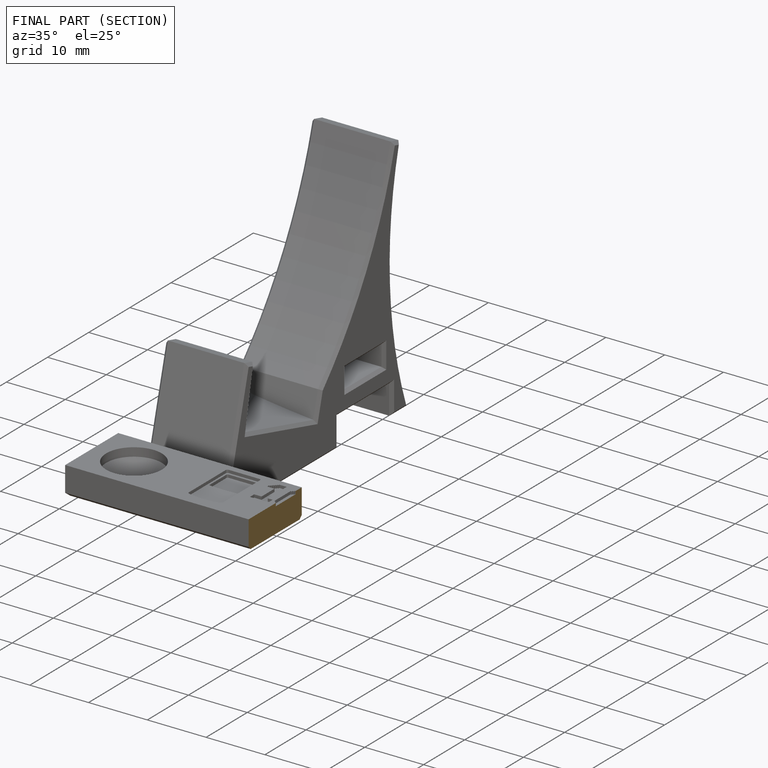
[diagram: finished part — half-section view (interior)]
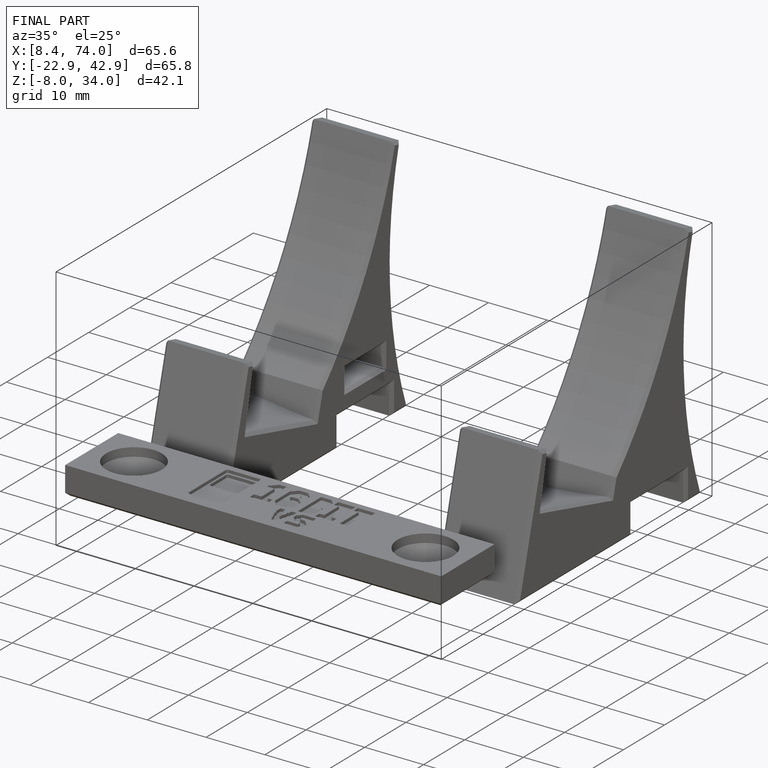
[diagram: finished part — iso view with bounding-box wireframe]
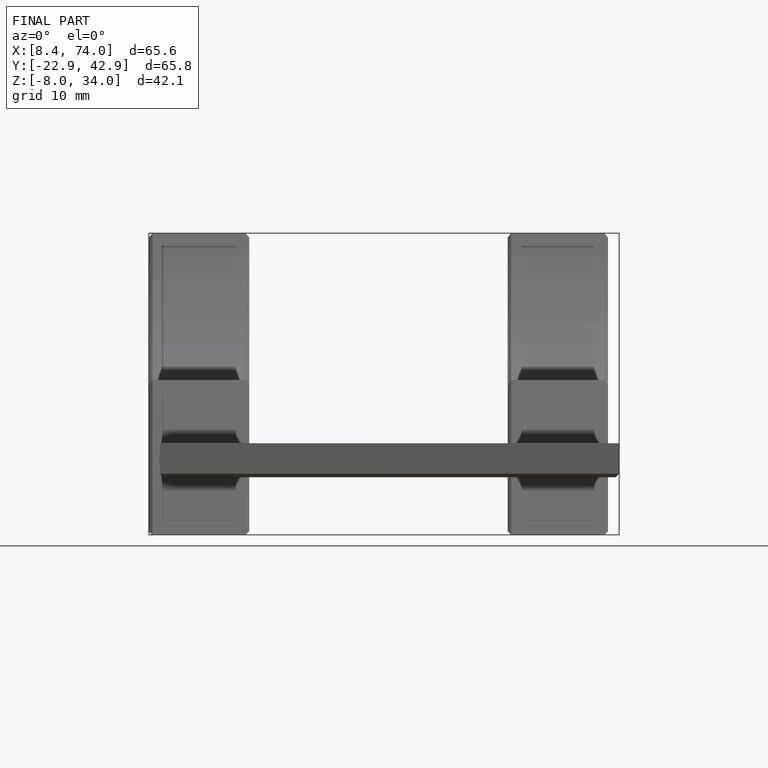
[diagram: finished part — front view with bounding-box wireframe]
